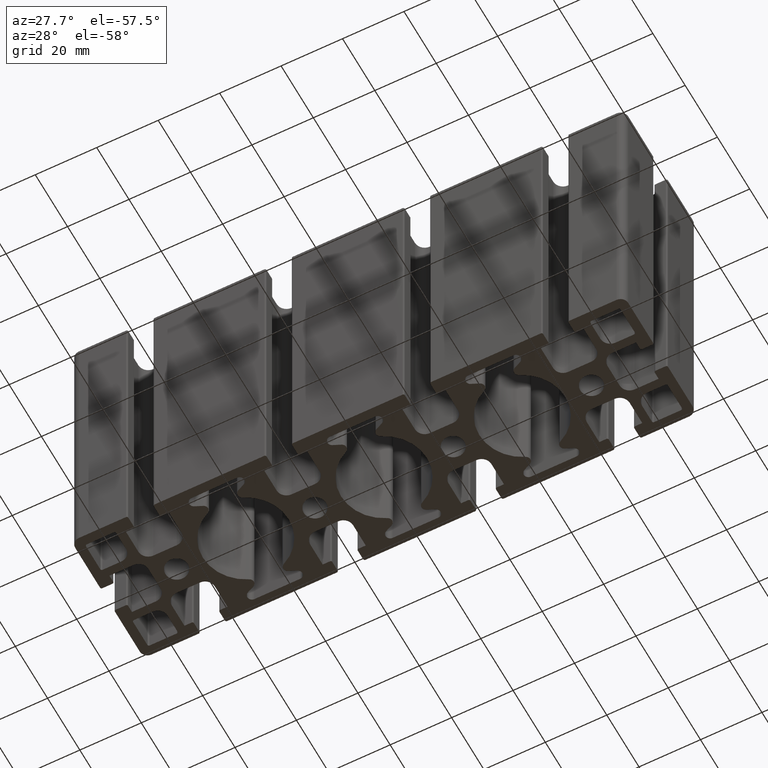
[diagram: clean part render]
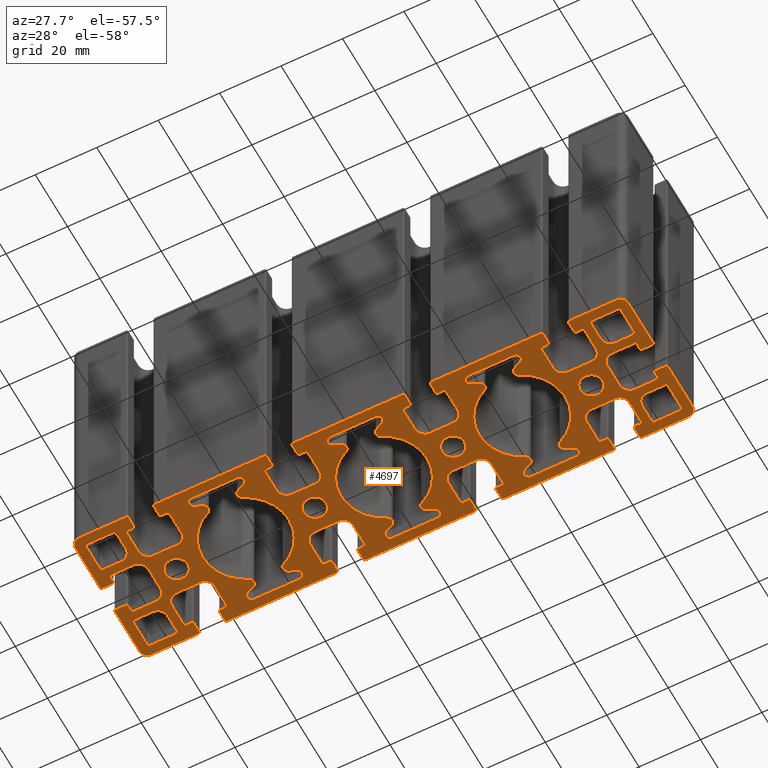
[diagram: same view with one face highlighted and labeled with its STEP entity id]
A machine part, auxiliary view. The second image highlights one B-rep face of the part: STEP entity #4697.
In plain terms, the highlighted planar face has unit normal (0, 0, 1).
Its self-contained STEP definition (entity closure, byte-faithful):
#19=FACE_BOUND('',#632,.T.);
#20=FACE_BOUND('',#633,.T.);
#21=FACE_BOUND('',#634,.T.);
#22=FACE_BOUND('',#635,.T.);
#23=FACE_BOUND('',#636,.T.);
#24=FACE_BOUND('',#637,.T.);
#25=FACE_BOUND('',#638,.T.);
#26=FACE_BOUND('',#639,.T.);
#27=FACE_BOUND('',#640,.T.);
#28=FACE_BOUND('',#641,.T.);
#29=FACE_BOUND('',#642,.T.);
#159=PLANE('',#5161);
#393=FACE_OUTER_BOUND('',#631,.T.);
#631=EDGE_LOOP('',(#3887,#3888,#3889,#3890,#3891,#3892,#3893,#3894,#3895,
#3896,#3897,#3898,#3899,#3900,#3901,#3902,#3903,#3904,#3905,#3906,#3907,
#3908,#3909,#3910,#3911,#3912,#3913,#3914,#3915,#3916,#3917,#3918,#3919,
#3920,#3921,#3922,#3923,#3924,#3925,#3926,#3927,#3928,#3929,#3930,#3931,
#3932,#3933,#3934,#3935,#3936,#3937,#3938,#3939,#3940,#3941,#3942,#3943,
#3944,#3945,#3946,#3947,#3948,#3949,#3950,#3951,#3952,#3953,#3954,#3955,
#3956,#3957,#3958,#3959,#3960,#3961,#3962,#3963,#3964,#3965,#3966,#3967,
#3968,#3969,#3970,#3971,#3972,#3973,#3974,#3975,#3976,#3977,#3978,#3979,
#3980,#3981,#3982,#3983,#3984,#3985,#3986,#3987,#3988,#3989,#3990,#3991,
#3992,#3993,#3994,#3995,#3996,#3997,#3998,#3999,#4000,#4001,#4002,#4003,
#4004,#4005,#4006,#4007,#4008,#4009,#4010,#4011,#4012,#4013,#4014,#4015,
#4016,#4017,#4018,#4019,#4020,#4021,#4022,#4023,#4024,#4025,#4026,#4027,
#4028,#4029,#4030,#4031,#4032,#4033,#4034));
#632=EDGE_LOOP('',(#4035,#4036,#4037,#4038,#4039,#4040,#4041,#4042,#4043,
#4044,#4045,#4046,#4047,#4048,#4049,#4050));
#633=EDGE_LOOP('',(#4051,#4052,#4053,#4054,#4055,#4056,#4057,#4058,#4059,
#4060,#4061,#4062,#4063,#4064,#4065,#4066));
#634=EDGE_LOOP('',(#4067,#4068,#4069,#4070,#4071,#4072,#4073,#4074,#4075,
#4076,#4077,#4078,#4079,#4080,#4081,#4082));
#635=EDGE_LOOP('',(#4083,#4084,#4085,#4086,#4087,#4088,#4089,#4090));
#636=EDGE_LOOP('',(#4091,#4092,#4093,#4094,#4095,#4096,#4097,#4098));
#637=EDGE_LOOP('',(#4099,#4100,#4101,#4102,#4103,#4104,#4105,#4106));
#638=EDGE_LOOP('',(#4107,#4108,#4109,#4110,#4111,#4112,#4113,#4114));
#639=EDGE_LOOP('',(#4115));
#640=EDGE_LOOP('',(#4116));
#641=EDGE_LOOP('',(#4117));
#642=EDGE_LOOP('',(#4118));
#657=LINE('',#6565,#1121);
#661=LINE('',#6577,#1125);
#667=LINE('',#6601,#1131);
#671=LINE('',#6613,#1135);
#675=LINE('',#6625,#1139);
#681=LINE('',#6648,#1145);
#685=LINE('',#6661,#1149);
#689=LINE('',#6673,#1153);
#695=LINE('',#6697,#1159);
#699=LINE('',#6709,#1163);
#703=LINE('',#6721,#1167);
#709=LINE('',#6744,#1173);
#711=LINE('',#6749,#1175);
#716=LINE('',#6763,#1180);
#720=LINE('',#6775,#1184);
#726=LINE('',#6799,#1190);
#730=LINE('',#6811,#1194);
#734=LINE('',#6823,#1198);
#741=LINE('',#6853,#1205);
#745=LINE('',#6865,#1209);
#749=LINE('',#6877,#1213);
#753=LINE('',#6888,#1217);
#757=LINE('',#6901,#1221);
#761=LINE('',#6913,#1225);
#765=LINE('',#6925,#1229);
#769=LINE('',#6936,#1233);
#771=LINE('',#6941,#1235);
#776=LINE('',#6955,#1240);
#780=LINE('',#6967,#1244);
#784=LINE('',#6979,#1248);
#789=LINE('',#6997,#1253);
#793=LINE('',#7009,#1257);
#797=LINE('',#7021,#1261);
#801=LINE('',#7032,#1265);
#805=LINE('',#7065,#1269);
#809=LINE('',#7077,#1273);
#812=LINE('',#7083,#1276);
#816=LINE('',#7095,#1280);
#820=LINE('',#7107,#1284);
#823=LINE('',#7113,#1287);
#827=LINE('',#7125,#1291);
#831=LINE('',#7137,#1295);
#835=LINE('',#7149,#1299);
#839=LINE('',#7161,#1303);
#842=LINE('',#7167,#1306);
#846=LINE('',#7179,#1310);
#850=LINE('',#7191,#1314);
#853=LINE('',#7197,#1317);
#857=LINE('',#7209,#1321);
#861=LINE('',#7221,#1325);
#865=LINE('',#7233,#1329);
#869=LINE('',#7245,#1333);
#872=LINE('',#7251,#1336);
#876=LINE('',#7263,#1340);
#880=LINE('',#7275,#1344);
#883=LINE('',#7281,#1347);
#887=LINE('',#7293,#1351);
#891=LINE('',#7305,#1355);
#895=LINE('',#7317,#1359);
#899=LINE('',#7329,#1363);
#903=LINE('',#7341,#1367);
#906=LINE('',#7347,#1370);
#910=LINE('',#7359,#1374);
#914=LINE('',#7371,#1378);
#917=LINE('',#7377,#1381);
#921=LINE('',#7389,#1385);
#925=LINE('',#7401,#1389);
#929=LINE('',#7413,#1393);
#933=LINE('',#7425,#1397);
#937=LINE('',#7437,#1401);
#940=LINE('',#7443,#1404);
#944=LINE('',#7455,#1408);
#948=LINE('',#7467,#1412);
#951=LINE('',#7473,#1415);
#955=LINE('',#7485,#1419);
#959=LINE('',#7497,#1423);
#963=LINE('',#7509,#1427);
#967=LINE('',#7521,#1431);
#970=LINE('',#7527,#1434);
#974=LINE('',#7539,#1438);
#978=LINE('',#7551,#1442);
#981=LINE('',#7557,#1445);
#985=LINE('',#7569,#1449);
#989=LINE('',#7581,#1453);
#993=LINE('',#7593,#1457);
#997=LINE('',#7605,#1461);
#1000=LINE('',#7611,#1464);
#1004=LINE('',#7623,#1468);
#1008=LINE('',#7635,#1472);
#1011=LINE('',#7641,#1475);
#1015=LINE('',#7653,#1479);
#1019=LINE('',#7665,#1483);
#1023=LINE('',#7677,#1487);
#1027=LINE('',#7689,#1491);
#1030=LINE('',#7695,#1494);
#1034=LINE('',#7707,#1498);
#1038=LINE('',#7719,#1502);
#1041=LINE('',#7725,#1505);
#1045=LINE('',#7737,#1509);
#1049=LINE('',#7749,#1513);
#1053=LINE('',#7761,#1517);
#1057=LINE('',#7773,#1521);
#1061=LINE('',#7785,#1525);
#1064=LINE('',#7791,#1528);
#1068=LINE('',#7803,#1532);
#1072=LINE('',#7815,#1536);
#1075=LINE('',#7821,#1539);
#1079=LINE('',#7833,#1543);
#1083=LINE('',#7845,#1547);
#1087=LINE('',#7857,#1551);
#1091=LINE('',#7869,#1555);
#1095=LINE('',#7881,#1559);
#1098=LINE('',#7887,#1562);
#1102=LINE('',#7899,#1566);
#1106=LINE('',#7911,#1570);
#1109=LINE('',#7917,#1573);
#1113=LINE('',#7929,#1577);
#1117=LINE('',#7940,#1581);
#1121=VECTOR('',#5175,14.9);
#1125=VECTOR('',#5187,2.65136562994515);
#1131=VECTOR('',#5213,2.65136562994534);
#1135=VECTOR('',#5225,14.9);
#1139=VECTOR('',#5237,2.65136562994532);
#1145=VECTOR('',#5263,2.65136562994513);
#1149=VECTOR('',#5275,14.9);
#1153=VECTOR('',#5287,2.6513656299451);
#1159=VECTOR('',#5313,2.65136562994525);
#1163=VECTOR('',#5325,14.9);
#1167=VECTOR('',#5337,2.65136562994532);
#1173=VECTOR('',#5363,2.65136562994516);
#1175=VECTOR('',#5367,2.65136562994502);
#1180=VECTOR('',#5380,14.8999999999999);
#1184=VECTOR('',#5392,2.65136562994511);
#1190=VECTOR('',#5418,2.65136562994502);
#1194=VECTOR('',#5430,14.9);
#1198=VECTOR('',#5442,2.6513656299451);
#1205=VECTOR('',#5475,8.79999999999989);
#1209=VECTOR('',#5487,6.10000000000019);
#1213=VECTOR('',#5499,6.09999999999998);
#1217=VECTOR('',#5511,8.80000000000013);
#1221=VECTOR('',#5523,8.79999999999997);
#1225=VECTOR('',#5535,8.80000000000024);
#1229=VECTOR('',#5547,6.10000000000001);
#1233=VECTOR('',#5559,6.10000000000014);
#1235=VECTOR('',#5563,8.79999999999994);
#1240=VECTOR('',#5576,8.79999999999995);
#1244=VECTOR('',#5588,6.09999999999998);
#1248=VECTOR('',#5600,6.09999999999992);
#1253=VECTOR('',#5619,6.09999999999994);
#1257=VECTOR('',#5631,8.79999999999997);
#1261=VECTOR('',#5643,8.7999999999999);
#1265=VECTOR('',#5655,6.09999999999996);
#1269=VECTOR('',#5691,3.30000000000016);
#1273=VECTOR('',#5703,2.34999999999971);
#1276=VECTOR('',#5708,7.79999999999994);
#1280=VECTOR('',#5720,7.59999999999987);
#1284=VECTOR('',#5732,7.79999999999996);
#1287=VECTOR('',#5737,2.35000000000014);
#1291=VECTOR('',#5749,3.30000000000013);
#1295=VECTOR('',#5761,35.7000000000003);
#1299=VECTOR('',#5773,3.30000000000023);
#1303=VECTOR('',#5785,2.34999999999992);
#1306=VECTOR('',#5790,7.79999999999996);
#1310=VECTOR('',#5802,7.60000000000019);
#1314=VECTOR('',#5814,7.79999999999994);
#1317=VECTOR('',#5819,2.34999999999999);
#1321=VECTOR('',#5831,3.3000000000002);
#1325=VECTOR('',#5843,35.6999999999999);
#1329=VECTOR('',#5855,3.3000000000002);
#1333=VECTOR('',#5867,2.35000000000014);
#1336=VECTOR('',#5872,7.79999999999994);
#1340=VECTOR('',#5884,7.6000000000001);
#1344=VECTOR('',#5896,7.79999999999994);
#1347=VECTOR('',#5901,2.34999999999992);
#1351=VECTOR('',#5913,3.3000000000002);
#1355=VECTOR('',#5925,15.3499999999999);
#1359=VECTOR('',#5937,15.3500000000002);
#1363=VECTOR('',#5949,3.2999999999997);
#1367=VECTOR('',#5961,2.35000000000014);
#1370=VECTOR('',#5966,7.80000000000017);
#1374=VECTOR('',#5978,7.60000000000012);
#1378=VECTOR('',#5990,7.80000000000024);
#1381=VECTOR('',#5995,2.34999999999996);
#1385=VECTOR('',#6007,3.29999999999991);
#1389=VECTOR('',#6019,15.3499999999999);
#1393=VECTOR('',#6031,15.35);
#1397=VECTOR('',#6043,3.29999999999998);
#1401=VECTOR('',#6055,2.34999999999992);
#1404=VECTOR('',#6060,7.79999999999998);
#1408=VECTOR('',#6072,7.60000000000003);
#1412=VECTOR('',#6084,7.79999999999994);
#1415=VECTOR('',#6089,2.35000000000014);
#1419=VECTOR('',#6101,3.30000000000002);
#1423=VECTOR('',#6113,35.6999999999998);
#1427=VECTOR('',#6125,3.30000000000002);
#1431=VECTOR('',#6137,2.34999999999999);
#1434=VECTOR('',#6142,7.79999999999998);
#1438=VECTOR('',#6154,7.60000000000005);
#1442=VECTOR('',#6166,7.79999999999998);
#1445=VECTOR('',#6171,2.34999999999992);
#1449=VECTOR('',#6183,3.29999999999998);
#1453=VECTOR('',#6195,35.7000000000002);
#1457=VECTOR('',#6207,3.29999999999995);
#1461=VECTOR('',#6219,2.35000000000014);
#1464=VECTOR('',#6224,7.79999999999996);
#1468=VECTOR('',#6236,7.59999999999984);
#1472=VECTOR('',#6248,7.79999999999996);
#1475=VECTOR('',#6253,2.34999999999992);
#1479=VECTOR('',#6265,3.29999999999998);
#1483=VECTOR('',#6277,35.6999999999998);
#1487=VECTOR('',#6289,3.29999999999995);
#1491=VECTOR('',#6301,2.34999999999989);
#1494=VECTOR('',#6306,7.79999999999996);
#1498=VECTOR('',#6318,7.59999999999998);
#1502=VECTOR('',#6330,7.79999999999996);
#1505=VECTOR('',#6335,2.35000000000003);
#1509=VECTOR('',#6347,3.29999999999995);
#1513=VECTOR('',#6359,15.35);
#1517=VECTOR('',#6371,15.3499999999999);
#1521=VECTOR('',#6383,3.30000000000005);
#1525=VECTOR('',#6395,2.34999999999991);
#1528=VECTOR('',#6400,7.80000000000012);
#1532=VECTOR('',#6412,7.60000000000012);
#1536=VECTOR('',#6424,7.80000000000006);
#1539=VECTOR('',#6429,2.35000000000014);
#1543=VECTOR('',#6441,3.29999999999995);
#1547=VECTOR('',#6453,15.3500000000002);
#1551=VECTOR('',#6465,15.3500000000001);
#1555=VECTOR('',#6477,3.30000000000013);
#1559=VECTOR('',#6489,2.35000000000003);
#1562=VECTOR('',#6494,7.79999999999992);
#1566=VECTOR('',#6506,7.60000000000003);
#1570=VECTOR('',#6518,7.79999999999992);
#1573=VECTOR('',#6523,2.34999999999989);
#1577=VECTOR('',#6535,3.30000000000016);
#1581=VECTOR('',#6547,35.7000000000003);
#1583=CIRCLE('',#4702,1.50000000000001);
#1585=CIRCLE('',#4706,1.5);
#1587=CIRCLE('',#4710,1.5);
#1589=CIRCLE('',#4713,14.);
#1591=CIRCLE('',#4716,1.5);
#1593=CIRCLE('',#4720,1.50000000000001);
#1595=CIRCLE('',#4724,1.5);
#1597=CIRCLE('',#4728,1.50000000000001);
#1599=CIRCLE('',#4731,14.);
#1601=CIRCLE('',#4734,1.5);
#1603=CIRCLE('',#4738,1.5);
#1605=CIRCLE('',#4742,1.5);
#1607=CIRCLE('',#4746,1.50000000000003);
#1609=CIRCLE('',#4749,14.);
#1611=CIRCLE('',#4752,1.50000000000001);
#1613=CIRCLE('',#4756,1.50000000000002);
#1615=CIRCLE('',#4760,1.5);
#1617=CIRCLE('',#4764,1.5);
#1619=CIRCLE('',#4767,14.);
#1621=CIRCLE('',#4770,1.5);
#1623=CIRCLE('',#4775,1.5);
#1625=CIRCLE('',#4779,1.49999999999999);
#1627=CIRCLE('',#4783,1.50000000000002);
#1629=CIRCLE('',#4786,14.);
#1631=CIRCLE('',#4789,1.50000000000001);
#1633=CIRCLE('',#4793,1.5);
#1635=CIRCLE('',#4797,1.5);
#1637=CIRCLE('',#4801,1.50000000000001);
#1639=CIRCLE('',#4804,14.);
#1641=CIRCLE('',#4807,1.50000000000001);
#1643=CIRCLE('',#4810,0.500000000000016);
#1645=CIRCLE('',#4814,0.500000000000025);
#1647=CIRCLE('',#4818,3.2);
#1649=CIRCLE('',#4822,0.500000000000007);
#1651=CIRCLE('',#4826,0.499999999999972);
#1653=CIRCLE('',#4830,0.500000000000025);
#1655=CIRCLE('',#4834,0.500000000000007);
#1657=CIRCLE('',#4838,3.2);
#1659=CIRCLE('',#4843,0.500000000000007);
#1661=CIRCLE('',#4847,0.500000000000007);
#1663=CIRCLE('',#4851,3.2);
#1665=CIRCLE('',#4855,0.500000000000025);
#1667=CIRCLE('',#4858,3.2);
#1669=CIRCLE('',#4862,0.499999999999989);
#1671=CIRCLE('',#4866,0.500000000000007);
#1673=CIRCLE('',#4870,0.499999999999972);
#1676=CIRCLE('',#4875,3.65);
#1678=CIRCLE('',#4878,3.65);
#1680=CIRCLE('',#4881,3.65);
#1682=CIRCLE('',#4884,3.65);
#1683=CIRCLE('',#4886,0.499999999999989);
#1685=CIRCLE('',#4890,0.500000000000043);
#1687=CIRCLE('',#4895,3.20000000000004);
#1689=CIRCLE('',#4899,3.20000000000004);
#1691=CIRCLE('',#4904,0.500000000000043);
#1693=CIRCLE('',#4908,0.500000000000016);
#1695=CIRCLE('',#4912,0.499999999999972);
#1697=CIRCLE('',#4916,0.500000000000025);
#1699=CIRCLE('',#4921,3.20000000000002);
#1701=CIRCLE('',#4925,3.2);
#1703=CIRCLE('',#4930,0.500000000000007);
#1705=CIRCLE('',#4934,0.499999999999972);
#1707=CIRCLE('',#4938,0.499999999999972);
#1709=CIRCLE('',#4942,0.500000000000025);
#1711=CIRCLE('',#4947,3.20000000000002);
#1713=CIRCLE('',#4951,3.2);
#1715=CIRCLE('',#4956,0.500000000000007);
#1717=CIRCLE('',#4960,0.499999999999989);
#1719=CIRCLE('',#4964,2.49999999999996);
#1721=CIRCLE('',#4968,0.499999999999972);
#1723=CIRCLE('',#4972,0.500000000000007);
#1725=CIRCLE('',#4977,3.2);
#1727=CIRCLE('',#4981,3.20000000000002);
#1729=CIRCLE('',#4986,0.499999999999989);
#1731=CIRCLE('',#4990,0.499999999999972);
#1733=CIRCLE('',#4994,2.49999999999996);
#1735=CIRCLE('',#4998,0.500000000000007);
#1737=CIRCLE('',#5002,0.499999999999989);
#1739=CIRCLE('',#5007,3.2);
#1741=CIRCLE('',#5011,3.2);
#1743=CIRCLE('',#5016,0.500000000000007);
#1745=CIRCLE('',#5020,0.499999999999989);
#1747=CIRCLE('',#5024,0.499999999999972);
#1749=CIRCLE('',#5028,0.499999999999972);
#1751=CIRCLE('',#5033,3.2);
#1753=CIRCLE('',#5037,3.20000000000004);
#1755=CIRCLE('',#5042,0.500000000000007);
#1757=CIRCLE('',#5046,0.499999999999989);
#1759=CIRCLE('',#5050,0.500000000000025);
#1761=CIRCLE('',#5054,0.500000000000025);
#1763=CIRCLE('',#5059,3.20000000000004);
#1765=CIRCLE('',#5063,3.20000000000004);
#1767=CIRCLE('',#5068,0.500000000000007);
#1769=CIRCLE('',#5072,0.500000000000007);
#1771=CIRCLE('',#5076,0.500000000000007);
#1773=CIRCLE('',#5080,0.500000000000025);
#1775=CIRCLE('',#5085,3.20000000000002);
#1777=CIRCLE('',#5089,3.20000000000002);
#1779=CIRCLE('',#5094,0.500000000000025);
#1781=CIRCLE('',#5098,0.500000000000007);
#1783=CIRCLE('',#5102,2.50000000000001);
#1785=CIRCLE('',#5106,0.499999999999989);
#1787=CIRCLE('',#5110,0.500000000000007);
#1789=CIRCLE('',#5115,3.20000000000004);
#1791=CIRCLE('',#5119,3.20000000000002);
#1793=CIRCLE('',#5124,0.499999999999989);
#1795=CIRCLE('',#5128,0.499999999999998);
#1797=CIRCLE('',#5132,2.5);
#1799=CIRCLE('',#5136,0.499999999999989);
#1801=CIRCLE('',#5140,0.500000000000043);
#1803=CIRCLE('',#5145,3.20000000000004);
#1805=CIRCLE('',#5149,3.20000000000002);
#1807=CIRCLE('',#5154,0.500000000000043);
#1809=CIRCLE('',#5158,0.500000000000016);
#1811=VERTEX_POINT('',#6555);
#1812=VERTEX_POINT('',#6556);
#1815=VERTEX_POINT('',#6564);
#1817=VERTEX_POINT('',#6570);
#1819=VERTEX_POINT('',#6576);
#1821=VERTEX_POINT('',#6582);
#1823=VERTEX_POINT('',#6588);
#1825=VERTEX_POINT('',#6594);
#1827=VERTEX_POINT('',#6600);
#1829=VERTEX_POINT('',#6606);
#1831=VERTEX_POINT('',#6612);
#1833=VERTEX_POINT('',#6618);
#1835=VERTEX_POINT('',#6624);
#1837=VERTEX_POINT('',#6630);
#1839=VERTEX_POINT('',#6636);
#1841=VERTEX_POINT('',#6642);
#1843=VERTEX_POINT('',#6651);
#1844=VERTEX_POINT('',#6652);
#1847=VERTEX_POINT('',#6660);
#1849=VERTEX_POINT('',#6666);
#1851=VERTEX_POINT('',#6672);
#1853=VERTEX_POINT('',#6678);
#1855=VERTEX_POINT('',#6684);
#1857=VERTEX_POINT('',#6690);
#1859=VERTEX_POINT('',#6696);
#1861=VERTEX_POINT('',#6702);
#1863=VERTEX_POINT('',#6708);
#1865=VERTEX_POINT('',#6714);
#1867=VERTEX_POINT('',#6720);
#1869=VERTEX_POINT('',#6726);
#1871=VERTEX_POINT('',#6732);
#1873=VERTEX_POINT('',#6738);
#1875=VERTEX_POINT('',#6747);
#1876=VERTEX_POINT('',#6748);
#1879=VERTEX_POINT('',#6756);
#1881=VERTEX_POINT('',#6762);
#1883=VERTEX_POINT('',#6768);
#1885=VERTEX_POINT('',#6774);
#1887=VERTEX_POINT('',#6780);
#1889=VERTEX_POINT('',#6786);
#1891=VERTEX_POINT('',#6792);
#1893=VERTEX_POINT('',#6798);
#1895=VERTEX_POINT('',#6804);
#1897=VERTEX_POINT('',#6810);
#1899=VERTEX_POINT('',#6816);
#1901=VERTEX_POINT('',#6822);
#1903=VERTEX_POINT('',#6828);
#1905=VERTEX_POINT('',#6834);
#1907=VERTEX_POINT('',#6843);
#1908=VERTEX_POINT('',#6844);
#1911=VERTEX_POINT('',#6852);
#1913=VERTEX_POINT('',#6858);
#1915=VERTEX_POINT('',#6864);
#1917=VERTEX_POINT('',#6870);
#1919=VERTEX_POINT('',#6876);
#1921=VERTEX_POINT('',#6882);
#1923=VERTEX_POINT('',#6891);
#1924=VERTEX_POINT('',#6892);
#1927=VERTEX_POINT('',#6900);
#1929=VERTEX_POINT('',#6906);
#1931=VERTEX_POINT('',#6912);
#1933=VERTEX_POINT('',#6918);
#1935=VERTEX_POINT('',#6924);
#1937=VERTEX_POINT('',#6930);
#1939=VERTEX_POINT('',#6939);
#1940=VERTEX_POINT('',#6940);
#1943=VERTEX_POINT('',#6948);
#1945=VERTEX_POINT('',#6954);
#1947=VERTEX_POINT('',#6960);
#1949=VERTEX_POINT('',#6966);
#1951=VERTEX_POINT('',#6972);
#1953=VERTEX_POINT('',#6978);
#1955=VERTEX_POINT('',#6987);
#1956=VERTEX_POINT('',#6988);
#1959=VERTEX_POINT('',#6996);
#1961=VERTEX_POINT('',#7002);
#1963=VERTEX_POINT('',#7008);
#1965=VERTEX_POINT('',#7014);
#1967=VERTEX_POINT('',#7020);
#1969=VERTEX_POINT('',#7026);
#1972=VERTEX_POINT('',#7037);
#1974=VERTEX_POINT('',#7042);
#1976=VERTEX_POINT('',#7047);
#1978=VERTEX_POINT('',#7052);
#1979=VERTEX_POINT('',#7055);
#1980=VERTEX_POINT('',#7056);
#1983=VERTEX_POINT('',#7064);
#1985=VERTEX_POINT('',#7070);
#1987=VERTEX_POINT('',#7076);
#1989=VERTEX_POINT('',#7082);
#1991=VERTEX_POINT('',#7088);
#1993=VERTEX_POINT('',#7094);
#1995=VERTEX_POINT('',#7100);
#1997=VERTEX_POINT('',#7106);
#1999=VERTEX_POINT('',#7112);
#2001=VERTEX_POINT('',#7118);
#2003=VERTEX_POINT('',#7124);
#2005=VERTEX_POINT('',#7130);
#2007=VERTEX_POINT('',#7136);
#2009=VERTEX_POINT('',#7142);
#2011=VERTEX_POINT('',#7148);
#2013=VERTEX_POINT('',#7154);
#2015=VERTEX_POINT('',#7160);
#2017=VERTEX_POINT('',#7166);
#2019=VERTEX_POINT('',#7172);
#2021=VERTEX_POINT('',#7178);
#2023=VERTEX_POINT('',#7184);
#2025=VERTEX_POINT('',#7190);
#2027=VERTEX_POINT('',#7196);
#2029=VERTEX_POINT('',#7202);
#2031=VERTEX_POINT('',#7208);
#2033=VERTEX_POINT('',#7214);
#2035=VERTEX_POINT('',#7220);
#2037=VERTEX_POINT('',#7226);
#2039=VERTEX_POINT('',#7232);
#2041=VERTEX_POINT('',#7238);
#2043=VERTEX_POINT('',#7244);
#2045=VERTEX_POINT('',#7250);
#2047=VERTEX_POINT('',#7256);
#2049=VERTEX_POINT('',#7262);
#2051=VERTEX_POINT('',#7268);
#2053=VERTEX_POINT('',#7274);
#2055=VERTEX_POINT('',#7280);
#2057=VERTEX_POINT('',#7286);
#2059=VERTEX_POINT('',#7292);
#2061=VERTEX_POINT('',#7298);
#2063=VERTEX_POINT('',#7304);
#2065=VERTEX_POINT('',#7310);
#2067=VERTEX_POINT('',#7316);
#2069=VERTEX_POINT('',#7322);
#2071=VERTEX_POINT('',#7328);
#2073=VERTEX_POINT('',#7334);
#2075=VERTEX_POINT('',#7340);
#2077=VERTEX_POINT('',#7346);
#2079=VERTEX_POINT('',#7352);
#2081=VERTEX_POINT('',#7358);
#2083=VERTEX_POINT('',#7364);
#2085=VERTEX_POINT('',#7370);
#2087=VERTEX_POINT('',#7376);
#2089=VERTEX_POINT('',#7382);
#2091=VERTEX_POINT('',#7388);
#2093=VERTEX_POINT('',#7394);
#2095=VERTEX_POINT('',#7400);
#2097=VERTEX_POINT('',#7406);
#2099=VERTEX_POINT('',#7412);
#2101=VERTEX_POINT('',#7418);
#2103=VERTEX_POINT('',#7424);
#2105=VERTEX_POINT('',#7430);
#2107=VERTEX_POINT('',#7436);
#2109=VERTEX_POINT('',#7442);
#2111=VERTEX_POINT('',#7448);
#2113=VERTEX_POINT('',#7454);
#2115=VERTEX_POINT('',#7460);
#2117=VERTEX_POINT('',#7466);
#2119=VERTEX_POINT('',#7472);
#2121=VERTEX_POINT('',#7478);
#2123=VERTEX_POINT('',#7484);
#2125=VERTEX_POINT('',#7490);
#2127=VERTEX_POINT('',#7496);
#2129=VERTEX_POINT('',#7502);
#2131=VERTEX_POINT('',#7508);
#2133=VERTEX_POINT('',#7514);
#2135=VERTEX_POINT('',#7520);
#2137=VERTEX_POINT('',#7526);
#2139=VERTEX_POINT('',#7532);
#2141=VERTEX_POINT('',#7538);
#2143=VERTEX_POINT('',#7544);
#2145=VERTEX_POINT('',#7550);
#2147=VERTEX_POINT('',#7556);
#2149=VERTEX_POINT('',#7562);
#2151=VERTEX_POINT('',#7568);
#2153=VERTEX_POINT('',#7574);
#2155=VERTEX_POINT('',#7580);
#2157=VERTEX_POINT('',#7586);
#2159=VERTEX_POINT('',#7592);
#2161=VERTEX_POINT('',#7598);
#2163=VERTEX_POINT('',#7604);
#2165=VERTEX_POINT('',#7610);
#2167=VERTEX_POINT('',#7616);
#2169=VERTEX_POINT('',#7622);
#2171=VERTEX_POINT('',#7628);
#2173=VERTEX_POINT('',#7634);
#2175=VERTEX_POINT('',#7640);
#2177=VERTEX_POINT('',#7646);
#2179=VERTEX_POINT('',#7652);
#2181=VERTEX_POINT('',#7658);
#2183=VERTEX_POINT('',#7664);
#2185=VERTEX_POINT('',#7670);
#2187=VERTEX_POINT('',#7676);
#2189=VERTEX_POINT('',#7682);
#2191=VERTEX_POINT('',#7688);
#2193=VERTEX_POINT('',#7694);
#2195=VERTEX_POINT('',#7700);
#2197=VERTEX_POINT('',#7706);
#2199=VERTEX_POINT('',#7712);
#2201=VERTEX_POINT('',#7718);
#2203=VERTEX_POINT('',#7724);
#2205=VERTEX_POINT('',#7730);
#2207=VERTEX_POINT('',#7736);
#2209=VERTEX_POINT('',#7742);
#2211=VERTEX_POINT('',#7748);
#2213=VERTEX_POINT('',#7754);
#2215=VERTEX_POINT('',#7760);
#2217=VERTEX_POINT('',#7766);
#2219=VERTEX_POINT('',#7772);
#2221=VERTEX_POINT('',#7778);
#2223=VERTEX_POINT('',#7784);
#2225=VERTEX_POINT('',#7790);
#2227=VERTEX_POINT('',#7796);
#2229=VERTEX_POINT('',#7802);
#2231=VERTEX_POINT('',#7808);
#2233=VERTEX_POINT('',#7814);
#2235=VERTEX_POINT('',#7820);
#2237=VERTEX_POINT('',#7826);
#2239=VERTEX_POINT('',#7832);
#2241=VERTEX_POINT('',#7838);
#2243=VERTEX_POINT('',#7844);
#2245=VERTEX_POINT('',#7850);
#2247=VERTEX_POINT('',#7856);
#2249=VERTEX_POINT('',#7862);
#2251=VERTEX_POINT('',#7868);
#2253=VERTEX_POINT('',#7874);
#2255=VERTEX_POINT('',#7880);
#2257=VERTEX_POINT('',#7886);
#2259=VERTEX_POINT('',#7892);
#2261=VERTEX_POINT('',#7898);
#2263=VERTEX_POINT('',#7904);
#2265=VERTEX_POINT('',#7910);
#2267=VERTEX_POINT('',#7916);
#2269=VERTEX_POINT('',#7922);
#2271=VERTEX_POINT('',#7928);
#2273=VERTEX_POINT('',#7934);
#2275=EDGE_CURVE('',#1811,#1812,#1583,.T.);
#2279=EDGE_CURVE('',#1815,#1811,#657,.T.);
#2282=EDGE_CURVE('',#1817,#1815,#1585,.T.);
#2285=EDGE_CURVE('',#1819,#1817,#661,.T.);
#2288=EDGE_CURVE('',#1821,#1819,#1587,.T.);
#2291=EDGE_CURVE('',#1823,#1821,#1589,.T.);
#2294=EDGE_CURVE('',#1825,#1823,#1591,.T.);
#2297=EDGE_CURVE('',#1827,#1825,#667,.T.);
#2300=EDGE_CURVE('',#1829,#1827,#1593,.T.);
#2303=EDGE_CURVE('',#1831,#1829,#671,.T.);
#2306=EDGE_CURVE('',#1833,#1831,#1595,.T.);
#2309=EDGE_CURVE('',#1835,#1833,#675,.T.);
#2312=EDGE_CURVE('',#1837,#1835,#1597,.T.);
#2315=EDGE_CURVE('',#1839,#1837,#1599,.T.);
#2318=EDGE_CURVE('',#1841,#1839,#1601,.T.);
#2321=EDGE_CURVE('',#1812,#1841,#681,.T.);
#2323=EDGE_CURVE('',#1843,#1844,#1603,.T.);
#2327=EDGE_CURVE('',#1847,#1843,#685,.T.);
#2330=EDGE_CURVE('',#1849,#1847,#1605,.T.);
#2333=EDGE_CURVE('',#1851,#1849,#689,.T.);
#2336=EDGE_CURVE('',#1853,#1851,#1607,.T.);
#2339=EDGE_CURVE('',#1855,#1853,#1609,.T.);
#2342=EDGE_CURVE('',#1857,#1855,#1611,.T.);
#2345=EDGE_CURVE('',#1859,#1857,#695,.T.);
#2348=EDGE_CURVE('',#1861,#1859,#1613,.T.);
#2351=EDGE_CURVE('',#1863,#1861,#699,.T.);
#2354=EDGE_CURVE('',#1865,#1863,#1615,.T.);
#2357=EDGE_CURVE('',#1867,#1865,#703,.T.);
#2360=EDGE_CURVE('',#1869,#1867,#1617,.T.);
#2363=EDGE_CURVE('',#1871,#1869,#1619,.T.);
#2366=EDGE_CURVE('',#1873,#1871,#1621,.T.);
#2369=EDGE_CURVE('',#1844,#1873,#709,.T.);
#2371=EDGE_CURVE('',#1875,#1876,#711,.T.);
#2375=EDGE_CURVE('',#1879,#1875,#1623,.T.);
#2378=EDGE_CURVE('',#1881,#1879,#716,.T.);
#2381=EDGE_CURVE('',#1883,#1881,#1625,.T.);
#2384=EDGE_CURVE('',#1885,#1883,#720,.T.);
#2387=EDGE_CURVE('',#1887,#1885,#1627,.T.);
#2390=EDGE_CURVE('',#1889,#1887,#1629,.T.);
#2393=EDGE_CURVE('',#1891,#1889,#1631,.T.);
#2396=EDGE_CURVE('',#1893,#1891,#726,.T.);
#2399=EDGE_CURVE('',#1895,#1893,#1633,.T.);
#2402=EDGE_CURVE('',#1897,#1895,#730,.T.);
#2405=EDGE_CURVE('',#1899,#1897,#1635,.T.);
#2408=EDGE_CURVE('',#1901,#1899,#734,.T.);
#2411=EDGE_CURVE('',#1903,#1901,#1637,.T.);
#2414=EDGE_CURVE('',#1905,#1903,#1639,.T.);
#2417=EDGE_CURVE('',#1876,#1905,#1641,.T.);
#2419=EDGE_CURVE('',#1907,#1908,#1643,.T.);
#2423=EDGE_CURVE('',#1911,#1907,#741,.T.);
#2426=EDGE_CURVE('',#1913,#1911,#1645,.T.);
#2429=EDGE_CURVE('',#1915,#1913,#745,.T.);
#2432=EDGE_CURVE('',#1917,#1915,#1647,.T.);
#2435=EDGE_CURVE('',#1919,#1917,#749,.T.);
#2438=EDGE_CURVE('',#1921,#1919,#1649,.T.);
#2441=EDGE_CURVE('',#1908,#1921,#753,.T.);
#2443=EDGE_CURVE('',#1923,#1924,#1651,.T.);
#2447=EDGE_CURVE('',#1927,#1923,#757,.T.);
#2450=EDGE_CURVE('',#1929,#1927,#1653,.T.);
#2453=EDGE_CURVE('',#1931,#1929,#761,.T.);
#2456=EDGE_CURVE('',#1933,#1931,#1655,.T.);
#2459=EDGE_CURVE('',#1935,#1933,#765,.T.);
#2462=EDGE_CURVE('',#1937,#1935,#1657,.T.);
#2465=EDGE_CURVE('',#1924,#1937,#769,.T.);
#2467=EDGE_CURVE('',#1939,#1940,#771,.T.);
#2471=EDGE_CURVE('',#1943,#1939,#1659,.T.);
#2474=EDGE_CURVE('',#1945,#1943,#776,.T.);
#2477=EDGE_CURVE('',#1947,#1945,#1661,.T.);
#2480=EDGE_CURVE('',#1949,#1947,#780,.T.);
#2483=EDGE_CURVE('',#1951,#1949,#1663,.T.);
#2486=EDGE_CURVE('',#1953,#1951,#784,.T.);
#2489=EDGE_CURVE('',#1940,#1953,#1665,.T.);
#2491=EDGE_CURVE('',#1955,#1956,#1667,.T.);
#2495=EDGE_CURVE('',#1959,#1955,#789,.T.);
#2498=EDGE_CURVE('',#1961,#1959,#1669,.T.);
#2501=EDGE_CURVE('',#1963,#1961,#793,.T.);
#2504=EDGE_CURVE('',#1965,#1963,#1671,.T.);
#2507=EDGE_CURVE('',#1967,#1965,#797,.T.);
#2510=EDGE_CURVE('',#1969,#1967,#1673,.T.);
#2513=EDGE_CURVE('',#1956,#1969,#801,.T.);
#2516=EDGE_CURVE('',#1972,#1972,#1676,.T.);
#2518=EDGE_CURVE('',#1974,#1974,#1678,.T.);
#2520=EDGE_CURVE('',#1976,#1976,#1680,.T.);
#2522=EDGE_CURVE('',#1978,#1978,#1682,.T.);
#2523=EDGE_CURVE('',#1979,#1980,#1683,.T.);
#2527=EDGE_CURVE('',#1980,#1983,#805,.T.);
#2530=EDGE_CURVE('',#1983,#1985,#1685,.T.);
#2533=EDGE_CURVE('',#1985,#1987,#809,.T.);
#2536=EDGE_CURVE('',#1987,#1989,#812,.T.);
#2539=EDGE_CURVE('',#1989,#1991,#1687,.T.);
#2542=EDGE_CURVE('',#1991,#1993,#816,.T.);
#2545=EDGE_CURVE('',#1993,#1995,#1689,.T.);
#2548=EDGE_CURVE('',#1995,#1997,#820,.T.);
#2551=EDGE_CURVE('',#1997,#1999,#823,.T.);
#2554=EDGE_CURVE('',#1999,#2001,#1691,.T.);
#2557=EDGE_CURVE('',#2001,#2003,#827,.T.);
#2560=EDGE_CURVE('',#2003,#2005,#1693,.T.);
#2563=EDGE_CURVE('',#2005,#2007,#831,.T.);
#2566=EDGE_CURVE('',#2007,#2009,#1695,.T.);
#2569=EDGE_CURVE('',#2009,#2011,#835,.T.);
#2572=EDGE_CURVE('',#2011,#2013,#1697,.T.);
#2575=EDGE_CURVE('',#2013,#2015,#839,.T.);
#2578=EDGE_CURVE('',#2015,#2017,#842,.T.);
#2581=EDGE_CURVE('',#2017,#2019,#1699,.T.);
#2584=EDGE_CURVE('',#2019,#2021,#846,.T.);
#2587=EDGE_CURVE('',#2021,#2023,#1701,.T.);
#2590=EDGE_CURVE('',#2023,#2025,#850,.T.);
#2593=EDGE_CURVE('',#2025,#2027,#853,.T.);
#2596=EDGE_CURVE('',#2027,#2029,#1703,.T.);
#2599=EDGE_CURVE('',#2029,#2031,#857,.T.);
#2602=EDGE_CURVE('',#2031,#2033,#1705,.T.);
#2605=EDGE_CURVE('',#2033,#2035,#861,.T.);
#2608=EDGE_CURVE('',#2035,#2037,#1707,.T.);
#2611=EDGE_CURVE('',#2037,#2039,#865,.T.);
#2614=EDGE_CURVE('',#2039,#2041,#1709,.T.);
#2617=EDGE_CURVE('',#2041,#2043,#869,.T.);
#2620=EDGE_CURVE('',#2043,#2045,#872,.T.);
#2623=EDGE_CURVE('',#2045,#2047,#1711,.T.);
#2626=EDGE_CURVE('',#2047,#2049,#876,.T.);
#2629=EDGE_CURVE('',#2049,#2051,#1713,.T.);
#2632=EDGE_CURVE('',#2051,#2053,#880,.T.);
#2635=EDGE_CURVE('',#2053,#2055,#883,.T.);
#2638=EDGE_CURVE('',#2055,#2057,#1715,.T.);
#2641=EDGE_CURVE('',#2057,#2059,#887,.T.);
#2644=EDGE_CURVE('',#2059,#2061,#1717,.T.);
#2647=EDGE_CURVE('',#2061,#2063,#891,.T.);
#2650=EDGE_CURVE('',#2063,#2065,#1719,.T.);
#2653=EDGE_CURVE('',#2065,#2067,#895,.T.);
#2656=EDGE_CURVE('',#2067,#2069,#1721,.T.);
#2659=EDGE_CURVE('',#2069,#2071,#899,.T.);
#2662=EDGE_CURVE('',#2071,#2073,#1723,.T.);
#2665=EDGE_CURVE('',#2073,#2075,#903,.T.);
#2668=EDGE_CURVE('',#2075,#2077,#906,.T.);
#2671=EDGE_CURVE('',#2077,#2079,#1725,.T.);
#2674=EDGE_CURVE('',#2079,#2081,#910,.T.);
#2677=EDGE_CURVE('',#2081,#2083,#1727,.T.);
#2680=EDGE_CURVE('',#2083,#2085,#914,.T.);
#2683=EDGE_CURVE('',#2085,#2087,#917,.T.);
#2686=EDGE_CURVE('',#2087,#2089,#1729,.T.);
#2689=EDGE_CURVE('',#2089,#2091,#921,.T.);
#2692=EDGE_CURVE('',#2091,#2093,#1731,.T.);
#2695=EDGE_CURVE('',#2093,#2095,#925,.T.);
#2698=EDGE_CURVE('',#2095,#2097,#1733,.T.);
#2701=EDGE_CURVE('',#2097,#2099,#929,.T.);
#2704=EDGE_CURVE('',#2099,#2101,#1735,.T.);
#2707=EDGE_CURVE('',#2101,#2103,#933,.T.);
#2710=EDGE_CURVE('',#2103,#2105,#1737,.T.);
#2713=EDGE_CURVE('',#2105,#2107,#937,.T.);
#2716=EDGE_CURVE('',#2107,#2109,#940,.T.);
#2719=EDGE_CURVE('',#2109,#2111,#1739,.T.);
#2722=EDGE_CURVE('',#2111,#2113,#944,.T.);
#2725=EDGE_CURVE('',#2113,#2115,#1741,.T.);
#2728=EDGE_CURVE('',#2115,#2117,#948,.T.);
#2731=EDGE_CURVE('',#2117,#2119,#951,.T.);
#2734=EDGE_CURVE('',#2119,#2121,#1743,.T.);
#2737=EDGE_CURVE('',#2121,#2123,#955,.T.);
#2740=EDGE_CURVE('',#2123,#2125,#1745,.T.);
#2743=EDGE_CURVE('',#2125,#2127,#959,.T.);
#2746=EDGE_CURVE('',#2127,#2129,#1747,.T.);
#2749=EDGE_CURVE('',#2129,#2131,#963,.T.);
#2752=EDGE_CURVE('',#2131,#2133,#1749,.T.);
#2755=EDGE_CURVE('',#2133,#2135,#967,.T.);
#2758=EDGE_CURVE('',#2135,#2137,#970,.T.);
#2761=EDGE_CURVE('',#2137,#2139,#1751,.T.);
#2764=EDGE_CURVE('',#2139,#2141,#974,.T.);
#2767=EDGE_CURVE('',#2141,#2143,#1753,.T.);
#2770=EDGE_CURVE('',#2143,#2145,#978,.T.);
#2773=EDGE_CURVE('',#2145,#2147,#981,.T.);
#2776=EDGE_CURVE('',#2147,#2149,#1755,.T.);
#2779=EDGE_CURVE('',#2149,#2151,#985,.T.);
#2782=EDGE_CURVE('',#2151,#2153,#1757,.T.);
#2785=EDGE_CURVE('',#2153,#2155,#989,.T.);
#2788=EDGE_CURVE('',#2155,#2157,#1759,.T.);
#2791=EDGE_CURVE('',#2157,#2159,#993,.T.);
#2794=EDGE_CURVE('',#2159,#2161,#1761,.T.);
#2797=EDGE_CURVE('',#2161,#2163,#997,.T.);
#2800=EDGE_CURVE('',#2163,#2165,#1000,.T.);
#2803=EDGE_CURVE('',#2165,#2167,#1763,.T.);
#2806=EDGE_CURVE('',#2167,#2169,#1004,.T.);
#2809=EDGE_CURVE('',#2169,#2171,#1765,.T.);
#2812=EDGE_CURVE('',#2171,#2173,#1008,.T.);
#2815=EDGE_CURVE('',#2173,#2175,#1011,.T.);
#2818=EDGE_CURVE('',#2175,#2177,#1767,.T.);
#2821=EDGE_CURVE('',#2177,#2179,#1015,.T.);
#2824=EDGE_CURVE('',#2179,#2181,#1769,.T.);
#2827=EDGE_CURVE('',#2181,#2183,#1019,.T.);
#2830=EDGE_CURVE('',#2183,#2185,#1771,.T.);
#2833=EDGE_CURVE('',#2185,#2187,#1023,.T.);
#2836=EDGE_CURVE('',#2187,#2189,#1773,.T.);
#2839=EDGE_CURVE('',#2189,#2191,#1027,.T.);
#2842=EDGE_CURVE('',#2191,#2193,#1030,.T.);
#2845=EDGE_CURVE('',#2193,#2195,#1775,.T.);
#2848=EDGE_CURVE('',#2195,#2197,#1034,.T.);
#2851=EDGE_CURVE('',#2197,#2199,#1777,.T.);
#2854=EDGE_CURVE('',#2199,#2201,#1038,.T.);
#2857=EDGE_CURVE('',#2201,#2203,#1041,.T.);
#2860=EDGE_CURVE('',#2203,#2205,#1779,.T.);
#2863=EDGE_CURVE('',#2205,#2207,#1045,.T.);
#2866=EDGE_CURVE('',#2207,#2209,#1781,.T.);
#2869=EDGE_CURVE('',#2209,#2211,#1049,.T.);
#2872=EDGE_CURVE('',#2211,#2213,#1783,.T.);
#2875=EDGE_CURVE('',#2213,#2215,#1053,.T.);
#2878=EDGE_CURVE('',#2215,#2217,#1785,.T.);
#2881=EDGE_CURVE('',#2217,#2219,#1057,.T.);
#2884=EDGE_CURVE('',#2219,#2221,#1787,.T.);
#2887=EDGE_CURVE('',#2221,#2223,#1061,.T.);
#2890=EDGE_CURVE('',#2223,#2225,#1064,.T.);
#2893=EDGE_CURVE('',#2225,#2227,#1789,.T.);
#2896=EDGE_CURVE('',#2227,#2229,#1068,.T.);
#2899=EDGE_CURVE('',#2229,#2231,#1791,.T.);
#2902=EDGE_CURVE('',#2231,#2233,#1072,.T.);
#2905=EDGE_CURVE('',#2233,#2235,#1075,.T.);
#2908=EDGE_CURVE('',#2235,#2237,#1793,.T.);
#2911=EDGE_CURVE('',#2237,#2239,#1079,.T.);
#2914=EDGE_CURVE('',#2239,#2241,#1795,.T.);
#2917=EDGE_CURVE('',#2241,#2243,#1083,.T.);
#2920=EDGE_CURVE('',#2243,#2245,#1797,.T.);
#2923=EDGE_CURVE('',#2245,#2247,#1087,.T.);
#2926=EDGE_CURVE('',#2247,#2249,#1799,.T.);
#2929=EDGE_CURVE('',#2249,#2251,#1091,.T.);
#2932=EDGE_CURVE('',#2251,#2253,#1801,.T.);
#2935=EDGE_CURVE('',#2253,#2255,#1095,.T.);
#2938=EDGE_CURVE('',#2255,#2257,#1098,.T.);
#2941=EDGE_CURVE('',#2257,#2259,#1803,.T.);
#2944=EDGE_CURVE('',#2259,#2261,#1102,.T.);
#2947=EDGE_CURVE('',#2261,#2263,#1805,.T.);
#2950=EDGE_CURVE('',#2263,#2265,#1106,.T.);
#2953=EDGE_CURVE('',#2265,#2267,#1109,.T.);
#2956=EDGE_CURVE('',#2267,#2269,#1807,.T.);
#2959=EDGE_CURVE('',#2269,#2271,#1113,.T.);
#2962=EDGE_CURVE('',#2271,#2273,#1809,.T.);
#2965=EDGE_CURVE('',#2273,#1979,#1117,.T.);
#3887=ORIENTED_EDGE('',*,*,#2965,.T.);
#3888=ORIENTED_EDGE('',*,*,#2523,.T.);
#3889=ORIENTED_EDGE('',*,*,#2527,.T.);
#3890=ORIENTED_EDGE('',*,*,#2530,.T.);
#3891=ORIENTED_EDGE('',*,*,#2533,.T.);
#3892=ORIENTED_EDGE('',*,*,#2536,.T.);
#3893=ORIENTED_EDGE('',*,*,#2539,.T.);
#3894=ORIENTED_EDGE('',*,*,#2542,.T.);
#3895=ORIENTED_EDGE('',*,*,#2545,.T.);
#3896=ORIENTED_EDGE('',*,*,#2548,.T.);
#3897=ORIENTED_EDGE('',*,*,#2551,.T.);
#3898=ORIENTED_EDGE('',*,*,#2554,.T.);
#3899=ORIENTED_EDGE('',*,*,#2557,.T.);
#3900=ORIENTED_EDGE('',*,*,#2560,.T.);
#3901=ORIENTED_EDGE('',*,*,#2563,.T.);
#3902=ORIENTED_EDGE('',*,*,#2566,.T.);
#3903=ORIENTED_EDGE('',*,*,#2569,.T.);
#3904=ORIENTED_EDGE('',*,*,#2572,.T.);
#3905=ORIENTED_EDGE('',*,*,#2575,.T.);
#3906=ORIENTED_EDGE('',*,*,#2578,.T.);
#3907=ORIENTED_EDGE('',*,*,#2581,.T.);
#3908=ORIENTED_EDGE('',*,*,#2584,.T.);
#3909=ORIENTED_EDGE('',*,*,#2587,.T.);
#3910=ORIENTED_EDGE('',*,*,#2590,.T.);
#3911=ORIENTED_EDGE('',*,*,#2593,.T.);
#3912=ORIENTED_EDGE('',*,*,#2596,.T.);
#3913=ORIENTED_EDGE('',*,*,#2599,.T.);
#3914=ORIENTED_EDGE('',*,*,#2602,.T.);
#3915=ORIENTED_EDGE('',*,*,#2605,.T.);
#3916=ORIENTED_EDGE('',*,*,#2608,.T.);
#3917=ORIENTED_EDGE('',*,*,#2611,.T.);
#3918=ORIENTED_EDGE('',*,*,#2614,.T.);
#3919=ORIENTED_EDGE('',*,*,#2617,.T.);
#3920=ORIENTED_EDGE('',*,*,#2620,.T.);
#3921=ORIENTED_EDGE('',*,*,#2623,.T.);
#3922=ORIENTED_EDGE('',*,*,#2626,.T.);
#3923=ORIENTED_EDGE('',*,*,#2629,.T.);
#3924=ORIENTED_EDGE('',*,*,#2632,.T.);
#3925=ORIENTED_EDGE('',*,*,#2635,.T.);
#3926=ORIENTED_EDGE('',*,*,#2638,.T.);
#3927=ORIENTED_EDGE('',*,*,#2641,.T.);
#3928=ORIENTED_EDGE('',*,*,#2644,.T.);
#3929=ORIENTED_EDGE('',*,*,#2647,.T.);
#3930=ORIENTED_EDGE('',*,*,#2650,.T.);
#3931=ORIENTED_EDGE('',*,*,#2653,.T.);
#3932=ORIENTED_EDGE('',*,*,#2656,.T.);
#3933=ORIENTED_EDGE('',*,*,#2659,.T.);
#3934=ORIENTED_EDGE('',*,*,#2662,.T.);
#3935=ORIENTED_EDGE('',*,*,#2665,.T.);
#3936=ORIENTED_EDGE('',*,*,#2668,.T.);
#3937=ORIENTED_EDGE('',*,*,#2671,.T.);
#3938=ORIENTED_EDGE('',*,*,#2674,.T.);
#3939=ORIENTED_EDGE('',*,*,#2677,.T.);
#3940=ORIENTED_EDGE('',*,*,#2680,.T.);
#3941=ORIENTED_EDGE('',*,*,#2683,.T.);
#3942=ORIENTED_EDGE('',*,*,#2686,.T.);
#3943=ORIENTED_EDGE('',*,*,#2689,.T.);
#3944=ORIENTED_EDGE('',*,*,#2692,.T.);
#3945=ORIENTED_EDGE('',*,*,#2695,.T.);
#3946=ORIENTED_EDGE('',*,*,#2698,.T.);
#3947=ORIENTED_EDGE('',*,*,#2701,.T.);
#3948=ORIENTED_EDGE('',*,*,#2704,.T.);
#3949=ORIENTED_EDGE('',*,*,#2707,.T.);
#3950=ORIENTED_EDGE('',*,*,#2710,.T.);
#3951=ORIENTED_EDGE('',*,*,#2713,.T.);
#3952=ORIENTED_EDGE('',*,*,#2716,.T.);
#3953=ORIENTED_EDGE('',*,*,#2719,.T.);
#3954=ORIENTED_EDGE('',*,*,#2722,.T.);
#3955=ORIENTED_EDGE('',*,*,#2725,.T.);
#3956=ORIENTED_EDGE('',*,*,#2728,.T.);
#3957=ORIENTED_EDGE('',*,*,#2731,.T.);
#3958=ORIENTED_EDGE('',*,*,#2734,.T.);
#3959=ORIENTED_EDGE('',*,*,#2737,.T.);
#3960=ORIENTED_EDGE('',*,*,#2740,.T.);
#3961=ORIENTED_EDGE('',*,*,#2743,.T.);
#3962=ORIENTED_EDGE('',*,*,#2746,.T.);
#3963=ORIENTED_EDGE('',*,*,#2749,.T.);
#3964=ORIENTED_EDGE('',*,*,#2752,.T.);
#3965=ORIENTED_EDGE('',*,*,#2755,.T.);
#3966=ORIENTED_EDGE('',*,*,#2758,.T.);
#3967=ORIENTED_EDGE('',*,*,#2761,.T.);
#3968=ORIENTED_EDGE('',*,*,#2764,.T.);
#3969=ORIENTED_EDGE('',*,*,#2767,.T.);
#3970=ORIENTED_EDGE('',*,*,#2770,.T.);
#3971=ORIENTED_EDGE('',*,*,#2773,.T.);
#3972=ORIENTED_EDGE('',*,*,#2776,.T.);
#3973=ORIENTED_EDGE('',*,*,#2779,.T.);
#3974=ORIENTED_EDGE('',*,*,#2782,.T.);
#3975=ORIENTED_EDGE('',*,*,#2785,.T.);
#3976=ORIENTED_EDGE('',*,*,#2788,.T.);
#3977=ORIENTED_EDGE('',*,*,#2791,.T.);
#3978=ORIENTED_EDGE('',*,*,#2794,.T.);
#3979=ORIENTED_EDGE('',*,*,#2797,.T.);
#3980=ORIENTED_EDGE('',*,*,#2800,.T.);
#3981=ORIENTED_EDGE('',*,*,#2803,.T.);
#3982=ORIENTED_EDGE('',*,*,#2806,.T.);
#3983=ORIENTED_EDGE('',*,*,#2809,.T.);
#3984=ORIENTED_EDGE('',*,*,#2812,.T.);
#3985=ORIENTED_EDGE('',*,*,#2815,.T.);
#3986=ORIENTED_EDGE('',*,*,#2818,.T.);
#3987=ORIENTED_EDGE('',*,*,#2821,.T.);
#3988=ORIENTED_EDGE('',*,*,#2824,.T.);
#3989=ORIENTED_EDGE('',*,*,#2827,.T.);
#3990=ORIENTED_EDGE('',*,*,#2830,.T.);
#3991=ORIENTED_EDGE('',*,*,#2833,.T.);
#3992=ORIENTED_EDGE('',*,*,#2836,.T.);
#3993=ORIENTED_EDGE('',*,*,#2839,.T.);
#3994=ORIENTED_EDGE('',*,*,#2842,.T.);
#3995=ORIENTED_EDGE('',*,*,#2845,.T.);
#3996=ORIENTED_EDGE('',*,*,#2848,.T.);
#3997=ORIENTED_EDGE('',*,*,#2851,.T.);
#3998=ORIENTED_EDGE('',*,*,#2854,.T.);
#3999=ORIENTED_EDGE('',*,*,#2857,.T.);
#4000=ORIENTED_EDGE('',*,*,#2860,.T.);
#4001=ORIENTED_EDGE('',*,*,#2863,.T.);
#4002=ORIENTED_EDGE('',*,*,#2866,.T.);
#4003=ORIENTED_EDGE('',*,*,#2869,.T.);
#4004=ORIENTED_EDGE('',*,*,#2872,.T.);
#4005=ORIENTED_EDGE('',*,*,#2875,.T.);
#4006=ORIENTED_EDGE('',*,*,#2878,.T.);
#4007=ORIENTED_EDGE('',*,*,#2881,.T.);
#4008=ORIENTED_EDGE('',*,*,#2884,.T.);
#4009=ORIENTED_EDGE('',*,*,#2887,.T.);
#4010=ORIENTED_EDGE('',*,*,#2890,.T.);
#4011=ORIENTED_EDGE('',*,*,#2893,.T.);
#4012=ORIENTED_EDGE('',*,*,#2896,.T.);
#4013=ORIENTED_EDGE('',*,*,#2899,.T.);
#4014=ORIENTED_EDGE('',*,*,#2902,.T.);
#4015=ORIENTED_EDGE('',*,*,#2905,.T.);
#4016=ORIENTED_EDGE('',*,*,#2908,.T.);
#4017=ORIENTED_EDGE('',*,*,#2911,.T.);
#4018=ORIENTED_EDGE('',*,*,#2914,.T.);
#4019=ORIENTED_EDGE('',*,*,#2917,.T.);
#4020=ORIENTED_EDGE('',*,*,#2920,.T.);
#4021=ORIENTED_EDGE('',*,*,#2923,.T.);
#4022=ORIENTED_EDGE('',*,*,#2926,.T.);
#4023=ORIENTED_EDGE('',*,*,#2929,.T.);
#4024=ORIENTED_EDGE('',*,*,#2932,.T.);
#4025=ORIENTED_EDGE('',*,*,#2935,.T.);
#4026=ORIENTED_EDGE('',*,*,#2938,.T.);
#4027=ORIENTED_EDGE('',*,*,#2941,.T.);
#4028=ORIENTED_EDGE('',*,*,#2944,.T.);
#4029=ORIENTED_EDGE('',*,*,#2947,.T.);
#4030=ORIENTED_EDGE('',*,*,#2950,.T.);
#4031=ORIENTED_EDGE('',*,*,#2953,.T.);
#4032=ORIENTED_EDGE('',*,*,#2956,.T.);
#4033=ORIENTED_EDGE('',*,*,#2959,.T.);
#4034=ORIENTED_EDGE('',*,*,#2962,.T.);
#4035=ORIENTED_EDGE('',*,*,#2275,.T.);
#4036=ORIENTED_EDGE('',*,*,#2321,.T.);
#4037=ORIENTED_EDGE('',*,*,#2318,.T.);
#4038=ORIENTED_EDGE('',*,*,#2315,.T.);
#4039=ORIENTED_EDGE('',*,*,#2312,.T.);
#4040=ORIENTED_EDGE('',*,*,#2309,.T.);
#4041=ORIENTED_EDGE('',*,*,#2306,.T.);
#4042=ORIENTED_EDGE('',*,*,#2303,.T.);
#4043=ORIENTED_EDGE('',*,*,#2300,.T.);
#4044=ORIENTED_EDGE('',*,*,#2297,.T.);
#4045=ORIENTED_EDGE('',*,*,#2294,.T.);
#4046=ORIENTED_EDGE('',*,*,#2291,.T.);
#4047=ORIENTED_EDGE('',*,*,#2288,.T.);
#4048=ORIENTED_EDGE('',*,*,#2285,.T.);
#4049=ORIENTED_EDGE('',*,*,#2282,.T.);
#4050=ORIENTED_EDGE('',*,*,#2279,.T.);
#4051=ORIENTED_EDGE('',*,*,#2323,.T.);
#4052=ORIENTED_EDGE('',*,*,#2369,.T.);
#4053=ORIENTED_EDGE('',*,*,#2366,.T.);
#4054=ORIENTED_EDGE('',*,*,#2363,.T.);
#4055=ORIENTED_EDGE('',*,*,#2360,.T.);
#4056=ORIENTED_EDGE('',*,*,#2357,.T.);
#4057=ORIENTED_EDGE('',*,*,#2354,.T.);
#4058=ORIENTED_EDGE('',*,*,#2351,.T.);
#4059=ORIENTED_EDGE('',*,*,#2348,.T.);
#4060=ORIENTED_EDGE('',*,*,#2345,.T.);
#4061=ORIENTED_EDGE('',*,*,#2342,.T.);
#4062=ORIENTED_EDGE('',*,*,#2339,.T.);
#4063=ORIENTED_EDGE('',*,*,#2336,.T.);
#4064=ORIENTED_EDGE('',*,*,#2333,.T.);
#4065=ORIENTED_EDGE('',*,*,#2330,.T.);
#4066=ORIENTED_EDGE('',*,*,#2327,.T.);
#4067=ORIENTED_EDGE('',*,*,#2371,.T.);
#4068=ORIENTED_EDGE('',*,*,#2417,.T.);
#4069=ORIENTED_EDGE('',*,*,#2414,.T.);
#4070=ORIENTED_EDGE('',*,*,#2411,.T.);
#4071=ORIENTED_EDGE('',*,*,#2408,.T.);
#4072=ORIENTED_EDGE('',*,*,#2405,.T.);
#4073=ORIENTED_EDGE('',*,*,#2402,.T.);
#4074=ORIENTED_EDGE('',*,*,#2399,.T.);
#4075=ORIENTED_EDGE('',*,*,#2396,.T.);
#4076=ORIENTED_EDGE('',*,*,#2393,.T.);
#4077=ORIENTED_EDGE('',*,*,#2390,.T.);
#4078=ORIENTED_EDGE('',*,*,#2387,.T.);
#4079=ORIENTED_EDGE('',*,*,#2384,.T.);
#4080=ORIENTED_EDGE('',*,*,#2381,.T.);
#4081=ORIENTED_EDGE('',*,*,#2378,.T.);
#4082=ORIENTED_EDGE('',*,*,#2375,.T.);
#4083=ORIENTED_EDGE('',*,*,#2419,.T.);
#4084=ORIENTED_EDGE('',*,*,#2441,.T.);
#4085=ORIENTED_EDGE('',*,*,#2438,.T.);
#4086=ORIENTED_EDGE('',*,*,#2435,.T.);
#4087=ORIENTED_EDGE('',*,*,#2432,.T.);
#4088=ORIENTED_EDGE('',*,*,#2429,.T.);
#4089=ORIENTED_EDGE('',*,*,#2426,.T.);
#4090=ORIENTED_EDGE('',*,*,#2423,.T.);
#4091=ORIENTED_EDGE('',*,*,#2443,.T.);
#4092=ORIENTED_EDGE('',*,*,#2465,.T.);
#4093=ORIENTED_EDGE('',*,*,#2462,.T.);
#4094=ORIENTED_EDGE('',*,*,#2459,.T.);
#4095=ORIENTED_EDGE('',*,*,#2456,.T.);
#4096=ORIENTED_EDGE('',*,*,#2453,.T.);
#4097=ORIENTED_EDGE('',*,*,#2450,.T.);
#4098=ORIENTED_EDGE('',*,*,#2447,.T.);
#4099=ORIENTED_EDGE('',*,*,#2467,.T.);
#4100=ORIENTED_EDGE('',*,*,#2489,.T.);
#4101=ORIENTED_EDGE('',*,*,#2486,.T.);
#4102=ORIENTED_EDGE('',*,*,#2483,.T.);
#4103=ORIENTED_EDGE('',*,*,#2480,.T.);
#4104=ORIENTED_EDGE('',*,*,#2477,.T.);
#4105=ORIENTED_EDGE('',*,*,#2474,.T.);
#4106=ORIENTED_EDGE('',*,*,#2471,.T.);
#4107=ORIENTED_EDGE('',*,*,#2491,.T.);
#4108=ORIENTED_EDGE('',*,*,#2513,.T.);
#4109=ORIENTED_EDGE('',*,*,#2510,.T.);
#4110=ORIENTED_EDGE('',*,*,#2507,.T.);
#4111=ORIENTED_EDGE('',*,*,#2504,.T.);
#4112=ORIENTED_EDGE('',*,*,#2501,.T.);
#4113=ORIENTED_EDGE('',*,*,#2498,.T.);
#4114=ORIENTED_EDGE('',*,*,#2495,.T.);
#4115=ORIENTED_EDGE('',*,*,#2516,.T.);
#4116=ORIENTED_EDGE('',*,*,#2518,.T.);
#4117=ORIENTED_EDGE('',*,*,#2520,.T.);
#4118=ORIENTED_EDGE('',*,*,#2522,.T.);
#4697=ADVANCED_FACE('',(#393,#19,#20,#21,#22,#23,#24,#25,#26,#27,#28,#29),
#159,.F.);
#4702=AXIS2_PLACEMENT_3D('',#6557,#5167,#5168);
#4706=AXIS2_PLACEMENT_3D('',#6571,#5180,#5181);
#4710=AXIS2_PLACEMENT_3D('',#6583,#5192,#5193);
#4713=AXIS2_PLACEMENT_3D('',#6589,#5199,#5200);
#4716=AXIS2_PLACEMENT_3D('',#6595,#5206,#5207);
#4720=AXIS2_PLACEMENT_3D('',#6607,#5218,#5219);
#4724=AXIS2_PLACEMENT_3D('',#6619,#5230,#5231);
#4728=AXIS2_PLACEMENT_3D('',#6631,#5242,#5243);
#4731=AXIS2_PLACEMENT_3D('',#6637,#5249,#5250);
#4734=AXIS2_PLACEMENT_3D('',#6643,#5256,#5257);
#4738=AXIS2_PLACEMENT_3D('',#6653,#5267,#5268);
#4742=AXIS2_PLACEMENT_3D('',#6667,#5280,#5281);
#4746=AXIS2_PLACEMENT_3D('',#6679,#5292,#5293);
#4749=AXIS2_PLACEMENT_3D('',#6685,#5299,#5300);
#4752=AXIS2_PLACEMENT_3D('',#6691,#5306,#5307);
#4756=AXIS2_PLACEMENT_3D('',#6703,#5318,#5319);
#4760=AXIS2_PLACEMENT_3D('',#6715,#5330,#5331);
#4764=AXIS2_PLACEMENT_3D('',#6727,#5342,#5343);
#4767=AXIS2_PLACEMENT_3D('',#6733,#5349,#5350);
#4770=AXIS2_PLACEMENT_3D('',#6739,#5356,#5357);
#4775=AXIS2_PLACEMENT_3D('',#6757,#5373,#5374);
#4779=AXIS2_PLACEMENT_3D('',#6769,#5385,#5386);
#4783=AXIS2_PLACEMENT_3D('',#6781,#5397,#5398);
#4786=AXIS2_PLACEMENT_3D('',#6787,#5404,#5405);
#4789=AXIS2_PLACEMENT_3D('',#6793,#5411,#5412);
#4793=AXIS2_PLACEMENT_3D('',#6805,#5423,#5424);
#4797=AXIS2_PLACEMENT_3D('',#6817,#5435,#5436);
#4801=AXIS2_PLACEMENT_3D('',#6829,#5447,#5448);
#4804=AXIS2_PLACEMENT_3D('',#6835,#5454,#5455);
#4807=AXIS2_PLACEMENT_3D('',#6840,#5461,#5462);
#4810=AXIS2_PLACEMENT_3D('',#6845,#5467,#5468);
#4814=AXIS2_PLACEMENT_3D('',#6859,#5480,#5481);
#4818=AXIS2_PLACEMENT_3D('',#6871,#5492,#5493);
#4822=AXIS2_PLACEMENT_3D('',#6883,#5504,#5505);
#4826=AXIS2_PLACEMENT_3D('',#6893,#5515,#5516);
#4830=AXIS2_PLACEMENT_3D('',#6907,#5528,#5529);
#4834=AXIS2_PLACEMENT_3D('',#6919,#5540,#5541);
#4838=AXIS2_PLACEMENT_3D('',#6931,#5552,#5553);
#4843=AXIS2_PLACEMENT_3D('',#6949,#5569,#5570);
#4847=AXIS2_PLACEMENT_3D('',#6961,#5581,#5582);
#4851=AXIS2_PLACEMENT_3D('',#6973,#5593,#5594);
#4855=AXIS2_PLACEMENT_3D('',#6984,#5605,#5606);
#4858=AXIS2_PLACEMENT_3D('',#6989,#5611,#5612);
#4862=AXIS2_PLACEMENT_3D('',#7003,#5624,#5625);
#4866=AXIS2_PLACEMENT_3D('',#7015,#5636,#5637);
#4870=AXIS2_PLACEMENT_3D('',#7027,#5648,#5649);
#4875=AXIS2_PLACEMENT_3D('',#7038,#5661,#5662);
#4878=AXIS2_PLACEMENT_3D('',#7043,#5667,#5668);
#4881=AXIS2_PLACEMENT_3D('',#7048,#5673,#5674);
#4884=AXIS2_PLACEMENT_3D('',#7053,#5679,#5680);
#4886=AXIS2_PLACEMENT_3D('',#7057,#5683,#5684);
#4890=AXIS2_PLACEMENT_3D('',#7071,#5696,#5697);
#4895=AXIS2_PLACEMENT_3D('',#7089,#5713,#5714);
#4899=AXIS2_PLACEMENT_3D('',#7101,#5725,#5726);
#4904=AXIS2_PLACEMENT_3D('',#7119,#5742,#5743);
#4908=AXIS2_PLACEMENT_3D('',#7131,#5754,#5755);
#4912=AXIS2_PLACEMENT_3D('',#7143,#5766,#5767);
#4916=AXIS2_PLACEMENT_3D('',#7155,#5778,#5779);
#4921=AXIS2_PLACEMENT_3D('',#7173,#5795,#5796);
#4925=AXIS2_PLACEMENT_3D('',#7185,#5807,#5808);
#4930=AXIS2_PLACEMENT_3D('',#7203,#5824,#5825);
#4934=AXIS2_PLACEMENT_3D('',#7215,#5836,#5837);
#4938=AXIS2_PLACEMENT_3D('',#7227,#5848,#5849);
#4942=AXIS2_PLACEMENT_3D('',#7239,#5860,#5861);
#4947=AXIS2_PLACEMENT_3D('',#7257,#5877,#5878);
#4951=AXIS2_PLACEMENT_3D('',#7269,#5889,#5890);
#4956=AXIS2_PLACEMENT_3D('',#7287,#5906,#5907);
#4960=AXIS2_PLACEMENT_3D('',#7299,#5918,#5919);
#4964=AXIS2_PLACEMENT_3D('',#7311,#5930,#5931);
#4968=AXIS2_PLACEMENT_3D('',#7323,#5942,#5943);
#4972=AXIS2_PLACEMENT_3D('',#7335,#5954,#5955);
#4977=AXIS2_PLACEMENT_3D('',#7353,#5971,#5972);
#4981=AXIS2_PLACEMENT_3D('',#7365,#5983,#5984);
#4986=AXIS2_PLACEMENT_3D('',#7383,#6000,#6001);
#4990=AXIS2_PLACEMENT_3D('',#7395,#6012,#6013);
#4994=AXIS2_PLACEMENT_3D('',#7407,#6024,#6025);
#4998=AXIS2_PLACEMENT_3D('',#7419,#6036,#6037);
#5002=AXIS2_PLACEMENT_3D('',#7431,#6048,#6049);
#5007=AXIS2_PLACEMENT_3D('',#7449,#6065,#6066);
#5011=AXIS2_PLACEMENT_3D('',#7461,#6077,#6078);
#5016=AXIS2_PLACEMENT_3D('',#7479,#6094,#6095);
#5020=AXIS2_PLACEMENT_3D('',#7491,#6106,#6107);
#5024=AXIS2_PLACEMENT_3D('',#7503,#6118,#6119);
#5028=AXIS2_PLACEMENT_3D('',#7515,#6130,#6131);
#5033=AXIS2_PLACEMENT_3D('',#7533,#6147,#6148);
#5037=AXIS2_PLACEMENT_3D('',#7545,#6159,#6160);
#5042=AXIS2_PLACEMENT_3D('',#7563,#6176,#6177);
#5046=AXIS2_PLACEMENT_3D('',#7575,#6188,#6189);
#5050=AXIS2_PLACEMENT_3D('',#7587,#6200,#6201);
#5054=AXIS2_PLACEMENT_3D('',#7599,#6212,#6213);
#5059=AXIS2_PLACEMENT_3D('',#7617,#6229,#6230);
#5063=AXIS2_PLACEMENT_3D('',#7629,#6241,#6242);
#5068=AXIS2_PLACEMENT_3D('',#7647,#6258,#6259);
#5072=AXIS2_PLACEMENT_3D('',#7659,#6270,#6271);
#5076=AXIS2_PLACEMENT_3D('',#7671,#6282,#6283);
#5080=AXIS2_PLACEMENT_3D('',#7683,#6294,#6295);
#5085=AXIS2_PLACEMENT_3D('',#7701,#6311,#6312);
#5089=AXIS2_PLACEMENT_3D('',#7713,#6323,#6324);
#5094=AXIS2_PLACEMENT_3D('',#7731,#6340,#6341);
#5098=AXIS2_PLACEMENT_3D('',#7743,#6352,#6353);
#5102=AXIS2_PLACEMENT_3D('',#7755,#6364,#6365);
#5106=AXIS2_PLACEMENT_3D('',#7767,#6376,#6377);
#5110=AXIS2_PLACEMENT_3D('',#7779,#6388,#6389);
#5115=AXIS2_PLACEMENT_3D('',#7797,#6405,#6406);
#5119=AXIS2_PLACEMENT_3D('',#7809,#6417,#6418);
#5124=AXIS2_PLACEMENT_3D('',#7827,#6434,#6435);
#5128=AXIS2_PLACEMENT_3D('',#7839,#6446,#6447);
#5132=AXIS2_PLACEMENT_3D('',#7851,#6458,#6459);
#5136=AXIS2_PLACEMENT_3D('',#7863,#6470,#6471);
#5140=AXIS2_PLACEMENT_3D('',#7875,#6482,#6483);
#5145=AXIS2_PLACEMENT_3D('',#7893,#6499,#6500);
#5149=AXIS2_PLACEMENT_3D('',#7905,#6511,#6512);
#5154=AXIS2_PLACEMENT_3D('',#7923,#6528,#6529);
#5158=AXIS2_PLACEMENT_3D('',#7935,#6540,#6541);
#5161=AXIS2_PLACEMENT_3D('',#7942,#6549,#6550);
#5167=DIRECTION('center_axis',(0.,0.,1.));
#5168=DIRECTION('ref_axis',(0.,-1.,0.));
#5175=DIRECTION('',(-1.,0.,0.));
#5180=DIRECTION('center_axis',(0.,0.,1.));
#5181=DIRECTION('ref_axis',(-0.413915588401256,0.910315267189583,0.));
#5187=DIRECTION('',(0.910315267189569,0.413915588401288,0.));
#5192=DIRECTION('center_axis',(0.,0.,-1.));
#5193=DIRECTION('ref_axis',(-0.413915588401228,0.910315267189596,0.));
#5199=DIRECTION('center_axis',(0.,0.,1.));
#5200=DIRECTION('ref_axis',(-0.405043106668581,0.914297589267447,0.));
#5206=DIRECTION('center_axis',(0.,0.,-1.));
#5207=DIRECTION('ref_axis',(-0.405043106668493,0.914297589267486,0.));
#5213=DIRECTION('',(-0.910315267189564,0.413915588401298,0.));
#5218=DIRECTION('center_axis',(0.,0.,1.));
#5219=DIRECTION('ref_axis',(-1.18423789293351E-14,1.,0.));
#5225=DIRECTION('',(1.,0.,0.));
#5230=DIRECTION('center_axis',(0.,0.,1.));
#5231=DIRECTION('ref_axis',(0.413915588401296,-0.910315267189565,0.));
#5237=DIRECTION('',(-0.910315267189569,-0.413915588401287,0.));
#5242=DIRECTION('center_axis',(0.,0.,-1.));
#5243=DIRECTION('ref_axis',(0.413915588401304,-0.910315267189561,0.));
#5249=DIRECTION('center_axis',(0.,0.,1.));
#5250=DIRECTION('ref_axis',(0.405043106668576,-0.914297589267449,0.));
#5256=DIRECTION('center_axis',(0.,0.,-1.));
#5257=DIRECTION('ref_axis',(0.405043106668571,-0.914297589267451,0.));
#5263=DIRECTION('',(0.910315267189564,-0.413915588401298,0.));
#5267=DIRECTION('center_axis',(0.,0.,1.));
#5268=DIRECTION('ref_axis',(0.,1.,0.));
#5275=DIRECTION('',(-1.,-4.76874319302081E-15,0.));
#5280=DIRECTION('center_axis',(0.,0.,1.));
#5281=DIRECTION('ref_axis',(0.413915588401189,-0.910315267189614,0.));
#5287=DIRECTION('',(0.910315267189565,0.413915588401295,0.));
#5292=DIRECTION('center_axis',(0.,0.,-1.));
#5293=DIRECTION('ref_axis',(0.413915588401239,-0.910315267189591,0.));
#5299=DIRECTION('center_axis',(0.,0.,1.));
#5300=DIRECTION('ref_axis',(0.405043106668583,-0.914297589267446,0.));
#5306=DIRECTION('center_axis',(0.,0.,-1.));
#5307=DIRECTION('ref_axis',(0.405043106668521,-0.914297589267473,0.));
#5313=DIRECTION('',(-0.910315267189568,0.413915588401289,0.));
#5318=DIRECTION('center_axis',(0.,0.,1.));
#5319=DIRECTION('ref_axis',(0.,-1.,0.));
#5325=DIRECTION('',(1.,-1.1921857982552E-15,0.));
#5330=DIRECTION('center_axis',(0.,0.,1.));
#5331=DIRECTION('ref_axis',(-0.413915588401281,0.910315267189572,0.));
#5337=DIRECTION('',(-0.910315267189572,-0.41391558840128,0.));
#5342=DIRECTION('center_axis',(0.,0.,-1.));
#5343=DIRECTION('ref_axis',(-0.41391558840129,0.910315267189568,0.));
#5349=DIRECTION('center_axis',(0.,0.,1.));
#5350=DIRECTION('ref_axis',(-0.405043106668578,0.914297589267448,0.));
#5356=DIRECTION('center_axis',(0.,0.,-1.));
#5357=DIRECTION('ref_axis',(-0.405043106668539,0.914297589267465,0.));
#5363=DIRECTION('',(0.910315267189572,-0.413915588401279,0.));
#5367=DIRECTION('',(0.910315267189566,-0.413915588401294,0.));
#5373=DIRECTION('center_axis',(0.,0.,1.));
#5374=DIRECTION('ref_axis',(0.,1.,0.));
#5380=DIRECTION('',(-1.,0.,0.));
#5385=DIRECTION('center_axis',(0.,0.,1.));
#5386=DIRECTION('ref_axis',(0.413915588401267,-0.910315267189578,0.));
#5392=DIRECTION('',(0.91031526718956,0.413915588401306,0.));
#5397=DIRECTION('center_axis',(0.,0.,-1.));
#5398=DIRECTION('ref_axis',(0.413915588401276,-0.910315267189574,0.));
#5404=DIRECTION('center_axis',(0.,0.,1.));
#5405=DIRECTION('ref_axis',(0.405043106668577,-0.914297589267448,0.));
#5411=DIRECTION('center_axis',(0.,0.,-1.));
#5412=DIRECTION('ref_axis',(0.405043106668565,-0.914297589267454,0.));
#5418=DIRECTION('',(-0.910315267189566,0.413915588401294,0.));
#5423=DIRECTION('center_axis',(0.,0.,1.));
#5424=DIRECTION('ref_axis',(0.,-1.,0.));
#5430=DIRECTION('',(1.,-1.19218579825521E-15,0.));
#5435=DIRECTION('center_axis',(0.,0.,1.));
#5436=DIRECTION('ref_axis',(-0.41391558840114,0.910315267189636,0.));
#5442=DIRECTION('',(-0.910315267189565,-0.413915588401295,0.));
#5447=DIRECTION('center_axis',(0.,0.,-1.));
#5448=DIRECTION('ref_axis',(-0.413915588401305,0.910315267189561,0.));
#5454=DIRECTION('center_axis',(0.,0.,1.));
#5455=DIRECTION('ref_axis',(-0.40504310666858,0.914297589267447,0.));
#5461=DIRECTION('center_axis',(0.,0.,-1.));
#5462=DIRECTION('ref_axis',(-0.405043106668508,0.914297589267479,0.));
#5467=DIRECTION('center_axis',(0.,0.,1.));
#5468=DIRECTION('ref_axis',(3.55271367880045E-14,-1.,0.));
#5475=DIRECTION('',(-1.,0.,0.));
#5480=DIRECTION('center_axis',(0.,0.,1.));
#5481=DIRECTION('ref_axis',(-1.,-7.1054273576004E-14,0.));
#5487=DIRECTION('',(-5.82412078491867E-15,1.,0.));
#5492=DIRECTION('center_axis',(0.,0.,1.));
#5493=DIRECTION('ref_axis',(0.,1.,0.));
#5499=DIRECTION('',(1.,0.,0.));
#5504=DIRECTION('center_axis',(0.,0.,1.));
#5505=DIRECTION('ref_axis',(1.,0.,0.));
#5511=DIRECTION('',(-4.03717463500051E-15,-1.,0.));
#5515=DIRECTION('center_axis',(0.,0.,1.));
#5516=DIRECTION('ref_axis',(0.,-1.,0.));
#5523=DIRECTION('',(-1.,0.,0.));
#5528=DIRECTION('center_axis',(0.,0.,1.));
#5529=DIRECTION('ref_axis',(-1.,-1.42108547152028E-13,0.));
#5535=DIRECTION('',(0.,1.,0.));
#5540=DIRECTION('center_axis',(0.,0.,1.));
#5541=DIRECTION('ref_axis',(0.,1.,0.));
#5547=DIRECTION('',(1.,5.82412078491884E-15,0.));
#5552=DIRECTION('center_axis',(0.,0.,1.));
#5553=DIRECTION('ref_axis',(1.,-1.11022302462518E-14,0.));
#5559=DIRECTION('',(0.,-1.,0.));
#5563=DIRECTION('',(1.,-4.0371746350006E-15,0.));
#5569=DIRECTION('center_axis',(0.,0.,1.));
#5570=DIRECTION('ref_axis',(1.,0.,0.));
#5576=DIRECTION('',(2.0185873175003E-15,-1.,0.));
#5581=DIRECTION('center_axis',(0.,0.,1.));
#5582=DIRECTION('ref_axis',(0.,-1.,0.));
#5588=DIRECTION('',(-1.,-2.91206039245944E-15,0.));
#5593=DIRECTION('center_axis',(0.,0.,1.));
#5594=DIRECTION('ref_axis',(-1.,5.55111512312578E-15,0.));
#5600=DIRECTION('',(5.82412078491893E-15,1.,0.));
#5605=DIRECTION('center_axis',(0.,0.,1.));
#5606=DIRECTION('ref_axis',(-7.1054273576004E-14,1.,0.));
#5611=DIRECTION('center_axis',(0.,0.,1.));
#5612=DIRECTION('ref_axis',(0.,-1.,0.));
#5619=DIRECTION('',(-1.,-1.16482415698378E-14,0.));
#5624=DIRECTION('center_axis',(0.,0.,1.));
#5625=DIRECTION('ref_axis',(-1.,3.5527136788002E-14,0.));
#5631=DIRECTION('',(4.03717463500058E-15,1.,0.));
#5636=DIRECTION('center_axis',(0.,0.,1.));
#5637=DIRECTION('ref_axis',(0.,1.,0.));
#5643=DIRECTION('',(1.,0.,0.));
#5648=DIRECTION('center_axis',(0.,0.,1.));
#5649=DIRECTION('ref_axis',(1.,0.,0.));
#5655=DIRECTION('',(0.,-1.,0.));
#5661=DIRECTION('center_axis',(0.,0.,1.));
#5662=DIRECTION('ref_axis',(-1.,0.,0.));
#5667=DIRECTION('center_axis',(0.,0.,1.));
#5668=DIRECTION('ref_axis',(-1.,0.,0.));
#5673=DIRECTION('center_axis',(0.,0.,1.));
#5674=DIRECTION('ref_axis',(-1.,0.,0.));
#5679=DIRECTION('center_axis',(0.,0.,1.));
#5680=DIRECTION('ref_axis',(-1.,0.,0.));
#5683=DIRECTION('center_axis',(0.,0.,-1.));
#5684=DIRECTION('ref_axis',(-1.,0.,0.));
#5691=DIRECTION('',(-1.45338286860013E-13,-1.,0.));
#5696=DIRECTION('center_axis',(0.,0.,-1.));
#5697=DIRECTION('ref_axis',(-7.10542735760065E-14,1.,0.));
#5703=DIRECTION('',(-1.,0.,0.));
#5708=DIRECTION('',(9.10952225333469E-15,-1.,0.));
#5713=DIRECTION('center_axis',(0.,0.,1.));
#5714=DIRECTION('ref_axis',(-1.,-1.66533453693771E-14,0.));
#5720=DIRECTION('',(1.,-9.34924652315937E-15,0.));
#5725=DIRECTION('center_axis',(0.,0.,1.));
#5726=DIRECTION('ref_axis',(1.11022302462512E-14,-1.,0.));
#5732=DIRECTION('',(0.,1.,0.));
#5737=DIRECTION('',(-1.,0.,0.));
#5742=DIRECTION('center_axis',(0.,0.,-1.));
#5743=DIRECTION('ref_axis',(1.,0.,0.));
#5749=DIRECTION('',(-1.07657990266678E-14,1.,0.));
#5754=DIRECTION('center_axis',(0.,0.,-1.));
#5755=DIRECTION('ref_axis',(7.1054273576004E-14,-1.,0.));
#5761=DIRECTION('',(1.,0.,0.));
#5766=DIRECTION('center_axis',(0.,0.,-1.));
#5767=DIRECTION('ref_axis',(-1.,0.,0.));
#5773=DIRECTION('',(0.,-1.,0.));
#5778=DIRECTION('center_axis',(0.,0.,-1.));
#5779=DIRECTION('ref_axis',(0.,1.,0.));
#5785=DIRECTION('',(-1.,0.,0.));
#5790=DIRECTION('',(0.,-1.,0.));
#5795=DIRECTION('center_axis',(0.,0.,1.));
#5796=DIRECTION('ref_axis',(-1.,-5.55111512312615E-15,0.));
#5802=DIRECTION('',(1.,-4.67462326157949E-15,0.));
#5807=DIRECTION('center_axis',(0.,0.,1.));
#5808=DIRECTION('ref_axis',(0.,-1.,0.));
#5814=DIRECTION('',(0.,1.,0.));
#5819=DIRECTION('',(-1.,0.,0.));
#5824=DIRECTION('center_axis',(0.,0.,-1.));
#5825=DIRECTION('ref_axis',(1.,0.,0.));
#5831=DIRECTION('',(0.,1.,0.));
#5836=DIRECTION('center_axis',(0.,0.,-1.));
#5837=DIRECTION('ref_axis',(0.,-1.,0.));
#5843=DIRECTION('',(1.,0.,0.));
#5848=DIRECTION('center_axis',(0.,0.,-1.));
#5849=DIRECTION('ref_axis',(-1.,0.,0.));
#5855=DIRECTION('',(8.61263922133404E-14,-1.,0.));
#5860=DIRECTION('center_axis',(0.,0.,-1.));
#5861=DIRECTION('ref_axis',(0.,1.,0.));
#5867=DIRECTION('',(-1.,0.,0.));
#5872=DIRECTION('',(0.,-1.,0.));
#5877=DIRECTION('center_axis',(0.,0.,1.));
#5878=DIRECTION('ref_axis',(-1.,0.,0.));
#5884=DIRECTION('',(1.,0.,0.));
#5889=DIRECTION('center_axis',(0.,0.,1.));
#5890=DIRECTION('ref_axis',(0.,-1.,0.));
#5896=DIRECTION('',(-1.82190445066694E-14,1.,0.));
#5901=DIRECTION('',(-1.,1.51179305480877E-14,0.));
#5906=DIRECTION('center_axis',(0.,0.,-1.));
#5907=DIRECTION('ref_axis',(1.,0.,0.));
#5913=DIRECTION('',(0.,1.,0.));
#5918=DIRECTION('center_axis',(0.,0.,-1.));
#5919=DIRECTION('ref_axis',(-1.42108547152028E-13,-1.,0.));
#5925=DIRECTION('',(1.,0.,0.));
#5930=DIRECTION('center_axis',(0.,0.,-1.));
#5931=DIRECTION('ref_axis',(-1.,0.,0.));
#5937=DIRECTION('',(-4.62894290397452E-15,-1.,0.));
#5942=DIRECTION('center_axis',(0.,0.,-1.));
#5943=DIRECTION('ref_axis',(0.,1.,0.));
#5949=DIRECTION('',(-1.,-5.38289951333458E-15,0.));
#5954=DIRECTION('center_axis',(0.,0.,-1.));
#5955=DIRECTION('ref_axis',(1.,0.,0.));
#5961=DIRECTION('',(0.,1.,0.));
#5966=DIRECTION('',(-1.,-6.83214169000081E-15,0.));
#5971=DIRECTION('center_axis',(0.,0.,1.));
#5972=DIRECTION('ref_axis',(0.,1.,0.));
#5978=DIRECTION('',(7.0119348923693E-15,-1.,0.));
#5983=DIRECTION('center_axis',(0.,0.,1.));
#5984=DIRECTION('ref_axis',(-1.,0.,0.));
#5990=DIRECTION('',(1.,0.,0.));
#5995=DIRECTION('',(-1.209434443847E-13,1.,0.));
#6000=DIRECTION('center_axis',(0.,0.,-1.));
#6001=DIRECTION('ref_axis',(0.,-1.,0.));
#6007=DIRECTION('',(1.,5.38289951333424E-15,0.));
#6012=DIRECTION('center_axis',(0.,0.,-1.));
#6013=DIRECTION('ref_axis',(-1.,1.06581410364006E-13,0.));
#6019=DIRECTION('',(0.,-1.,0.));
#6024=DIRECTION('center_axis',(0.,0.,-1.));
#6025=DIRECTION('ref_axis',(0.,1.,0.));
#6031=DIRECTION('',(-1.,-3.47170717798095E-15,0.));
#6036=DIRECTION('center_axis',(0.,0.,-1.));
#6037=DIRECTION('ref_axis',(1.,-3.55271367880045E-14,0.));
#6043=DIRECTION('',(0.,1.,0.));
#6048=DIRECTION('center_axis',(0.,0.,-1.));
#6049=DIRECTION('ref_axis',(0.,-1.,0.));
#6055=DIRECTION('',(1.,-1.51179305480877E-14,0.));
#6060=DIRECTION('',(1.82190445066693E-14,1.,0.));
#6065=DIRECTION('center_axis',(0.,0.,1.));
#6066=DIRECTION('ref_axis',(1.,0.,0.));
#6072=DIRECTION('',(-1.,0.,0.));
#6077=DIRECTION('center_axis',(0.,0.,1.));
#6078=DIRECTION('ref_axis',(0.,1.,0.));
#6084=DIRECTION('',(0.,-1.,0.));
#6089=DIRECTION('',(1.,-1.51179305480864E-14,0.));
#6094=DIRECTION('center_axis',(0.,0.,-1.));
#6095=DIRECTION('ref_axis',(-1.,0.,0.));
#6101=DIRECTION('',(-8.6126392213345E-14,-1.,0.));
#6106=DIRECTION('center_axis',(0.,0.,-1.));
#6107=DIRECTION('ref_axis',(0.,1.,0.));
#6113=DIRECTION('',(-1.,-4.97578946610717E-16,0.));
#6118=DIRECTION('center_axis',(0.,0.,-1.));
#6119=DIRECTION('ref_axis',(1.,0.,0.));
#6125=DIRECTION('',(0.,1.,0.));
#6130=DIRECTION('center_axis',(0.,0.,-1.));
#6131=DIRECTION('ref_axis',(0.,-1.,0.));
#6137=DIRECTION('',(1.,0.,0.));
#6142=DIRECTION('',(-9.10952225333465E-15,1.,0.));
#6147=DIRECTION('center_axis',(0.,0.,1.));
#6148=DIRECTION('ref_axis',(1.,0.,0.));
#6154=DIRECTION('',(-1.,0.,0.));
#6159=DIRECTION('center_axis',(0.,0.,1.));
#6160=DIRECTION('ref_axis',(2.22044604925031E-14,1.,0.));
#6166=DIRECTION('',(2.73285667600039E-14,-1.,0.));
#6171=DIRECTION('',(1.,0.,0.));
#6176=DIRECTION('center_axis',(0.,0.,-1.));
#6177=DIRECTION('ref_axis',(-1.,7.1054273576004E-14,0.));
#6183=DIRECTION('',(0.,-1.,0.));
#6188=DIRECTION('center_axis',(0.,0.,-1.));
#6189=DIRECTION('ref_axis',(0.,1.,0.));
#6195=DIRECTION('',(-1.,-9.95157893221422E-16,0.));
#6200=DIRECTION('center_axis',(0.,0.,-1.));
#6201=DIRECTION('ref_axis',(1.,0.,0.));
#6207=DIRECTION('',(5.38289951333418E-15,1.,0.));
#6212=DIRECTION('center_axis',(0.,0.,-1.));
#6213=DIRECTION('ref_axis',(3.55271367880045E-14,-1.,0.));
#6219=DIRECTION('',(1.,0.,0.));
#6224=DIRECTION('',(-4.55476112666733E-15,1.,0.));
#6229=DIRECTION('center_axis',(0.,0.,1.));
#6230=DIRECTION('ref_axis',(1.,1.11022302462514E-14,0.));
#6236=DIRECTION('',(-1.,4.67462326157971E-15,0.));
#6241=DIRECTION('center_axis',(0.,0.,1.));
#6242=DIRECTION('ref_axis',(-1.11022302462514E-14,1.,0.));
#6248=DIRECTION('',(-9.10952225333467E-15,-1.,0.));
#6253=DIRECTION('',(1.,0.,0.));
#6258=DIRECTION('center_axis',(0.,0.,-1.));
#6259=DIRECTION('ref_axis',(-1.,0.,0.));
#6265=DIRECTION('',(0.,-1.,0.));
#6270=DIRECTION('center_axis',(0.,0.,-1.));
#6271=DIRECTION('ref_axis',(0.,1.,0.));
#6277=DIRECTION('',(-1.,1.49273683983215E-15,0.));
#6282=DIRECTION('center_axis',(0.,0.,-1.));
#6283=DIRECTION('ref_axis',(1.,0.,0.));
#6289=DIRECTION('',(-6.99776936733443E-14,1.,0.));
#6294=DIRECTION('center_axis',(0.,0.,-1.));
#6295=DIRECTION('ref_axis',(0.,-1.,0.));
#6301=DIRECTION('',(1.,0.,0.));
#6306=DIRECTION('',(2.7328566760004E-14,1.,0.));
#6311=DIRECTION('center_axis',(0.,0.,1.));
#6312=DIRECTION('ref_axis',(1.,0.,0.));
#6318=DIRECTION('',(-1.,0.,0.));
#6323=DIRECTION('center_axis',(0.,0.,1.));
#6324=DIRECTION('ref_axis',(1.11022302462515E-14,1.,0.));
#6330=DIRECTION('',(-4.55476112666733E-15,-1.,0.));
#6335=DIRECTION('',(1.,7.55896527404352E-15,0.));
#6340=DIRECTION('center_axis',(0.,0.,-1.));
#6341=DIRECTION('ref_axis',(-1.,0.,0.));
#6347=DIRECTION('',(3.22973970800051E-14,-1.,0.));
#6352=DIRECTION('center_axis',(0.,0.,-1.));
#6353=DIRECTION('ref_axis',(0.,1.,0.));
#6359=DIRECTION('',(-1.,-1.15723572599365E-15,0.));
#6364=DIRECTION('center_axis',(0.,0.,-1.));
#6365=DIRECTION('ref_axis',(1.,0.,0.));
#6371=DIRECTION('',(-5.78617862996829E-15,1.,0.));
#6376=DIRECTION('center_axis',(0.,0.,-1.));
#6377=DIRECTION('ref_axis',(0.,-1.,0.));
#6383=DIRECTION('',(1.,-5.382899513334E-15,0.));
#6388=DIRECTION('center_axis',(0.,0.,-1.));
#6389=DIRECTION('ref_axis',(-1.,0.,0.));
#6395=DIRECTION('',(-6.80306874663953E-14,-1.,0.));
#6400=DIRECTION('',(1.,0.,0.));
#6405=DIRECTION('center_axis',(0.,0.,1.));
#6406=DIRECTION('ref_axis',(1.6653345369378E-14,-1.,0.));
#6412=DIRECTION('',(-2.33731163078977E-15,1.,0.));
#6417=DIRECTION('center_axis',(0.,0.,1.));
#6418=DIRECTION('ref_axis',(1.,0.,0.));
#6424=DIRECTION('',(-1.,4.55476112666727E-15,0.));
#6429=DIRECTION('',(0.,-1.,0.));
#6434=DIRECTION('center_axis',(0.,0.,-1.));
#6435=DIRECTION('ref_axis',(0.,1.,0.));
#6441=DIRECTION('',(-1.,-1.61486985400025E-14,0.));
#6446=DIRECTION('center_axis',(0.,0.,-1.));
#6447=DIRECTION('ref_axis',(1.,0.,0.));
#6453=DIRECTION('',(0.,1.,0.));
#6458=DIRECTION('center_axis',(0.,0.,-1.));
#6459=DIRECTION('ref_axis',(7.105427357601E-15,-1.,0.));
#6465=DIRECTION('',(1.,0.,0.));
#6470=DIRECTION('center_axis',(0.,0.,-1.));
#6471=DIRECTION('ref_axis',(-1.,1.06581410364017E-13,0.));
#6477=DIRECTION('',(-3.76802965933372E-14,-1.,0.));
#6482=DIRECTION('center_axis',(0.,0.,-1.));
#6483=DIRECTION('ref_axis',(-7.10542735760065E-14,1.,0.));
#6489=DIRECTION('',(-1.,0.,0.));
#6494=DIRECTION('',(4.55476112666735E-15,-1.,0.));
#6499=DIRECTION('center_axis',(0.,0.,1.));
#6500=DIRECTION('ref_axis',(-1.,-5.55111512312572E-15,0.));
#6506=DIRECTION('',(1.,0.,0.));
#6511=DIRECTION('center_axis',(0.,0.,1.));
#6512=DIRECTION('ref_axis',(1.11022302462515E-14,-1.,0.));
#6518=DIRECTION('',(-2.73285667600041E-14,1.,0.));
#6523=DIRECTION('',(-1.,-7.55896527404398E-15,0.));
#6528=DIRECTION('center_axis',(0.,0.,-1.));
#6529=DIRECTION('ref_axis',(1.,7.10542735760065E-14,0.));
#6535=DIRECTION('',(-5.38289951333383E-15,1.,0.));
#6540=DIRECTION('center_axis',(0.,0.,-1.));
#6541=DIRECTION('ref_axis',(3.5527136788002E-14,-1.,0.));
#6547=DIRECTION('',(1.,-1.49273683983213E-15,0.));
#6549=DIRECTION('center_axis',(0.,0.,1.));
#6550=DIRECTION('ref_axis',(1.,0.,0.));
#6555=CARTESIAN_POINT('',(-52.4500000000004,19.5,0.));
#6556=CARTESIAN_POINT('',(-53.0708733826022,16.6345270992156,0.));
#6557=CARTESIAN_POINT('Origin',(-52.4500000000004,18.,0.));
#6564=CARTESIAN_POINT('',(-37.5500000000005,19.5,0.));
#6565=CARTESIAN_POINT('',(-18.7750000000003,19.5,0.));
#6570=CARTESIAN_POINT('',(-36.9291266173986,16.6345270992156,0.));
#6571=CARTESIAN_POINT('Origin',(-37.5500000000005,18.,0.));
#6576=CARTESIAN_POINT('',(-39.3427052292394,15.5370855344299,0.));
#6577=CARTESIAN_POINT('',(-25.9687068347516,21.6181726195919,0.));
#6582=CARTESIAN_POINT('',(-39.3293965066404,12.8001662497443,0.));
#6583=CARTESIAN_POINT('Origin',(-38.7218318466375,14.1716126336455,0.));
#6588=CARTESIAN_POINT('',(-39.3293965066403,-12.8001662497443,0.));
#6589=CARTESIAN_POINT('Origin',(-45.0000000000004,0.,0.));
#6594=CARTESIAN_POINT('',(-39.3427052292395,-15.5370855344299,0.));
#6595=CARTESIAN_POINT('Origin',(-38.7218318466375,-14.1716126336456,0.));
#6600=CARTESIAN_POINT('',(-36.9291266173985,-16.6345270992157,0.));
#6601=CARTESIAN_POINT('',(-24.7619175288314,-22.1668934019849,0.));
#6606=CARTESIAN_POINT('',(-37.5500000000005,-19.5,0.));
#6607=CARTESIAN_POINT('Origin',(-37.5500000000005,-18.,0.));
#6612=CARTESIAN_POINT('',(-52.4500000000004,-19.5,0.));
#6613=CARTESIAN_POINT('',(-26.2250000000003,-19.5,0.));
#6618=CARTESIAN_POINT('',(-53.0708733826024,-16.6345270992156,0.));
#6619=CARTESIAN_POINT('Origin',(-52.4500000000004,-18.,0.));
#6624=CARTESIAN_POINT('',(-50.6572947707615,-15.5370855344299,0.));
#6625=CARTESIAN_POINT('',(-26.7409683097203,-4.66245704436675,0.));
#6630=CARTESIAN_POINT('',(-50.6706034933605,-12.8001662497443,0.));
#6631=CARTESIAN_POINT('Origin',(-51.2781681533634,-14.1716126336456,0.));
#6636=CARTESIAN_POINT('',(-50.6706034933605,12.8001662497443,0.));
#6637=CARTESIAN_POINT('Origin',(-45.0000000000004,0.,0.));
#6642=CARTESIAN_POINT('',(-50.6572947707615,15.5370855344299,0.));
#6643=CARTESIAN_POINT('Origin',(-51.2781681533634,14.1716126336455,0.));
#6648=CARTESIAN_POINT('',(-27.9477576156409,5.21117782675933,0.));
#6651=CARTESIAN_POINT('',(-7.45000000000001,19.5,0.));
#6652=CARTESIAN_POINT('',(-8.07087338260178,16.6345270992156,0.));
#6653=CARTESIAN_POINT('Origin',(-7.45000000000001,18.,0.));
#6660=CARTESIAN_POINT('',(7.44999999999997,19.5,0.));
#6661=CARTESIAN_POINT('',(3.72499999999986,19.5,0.));
#6666=CARTESIAN_POINT('',(8.07087338260175,16.6345270992156,0.));
#6667=CARTESIAN_POINT('Origin',(7.44999999999997,18.,0.));
#6672=CARTESIAN_POINT('',(5.65729477076104,15.5370855344299,0.));
#6673=CARTESIAN_POINT('',(0.386130737484282,13.1403148319793,0.));
#6678=CARTESIAN_POINT('',(5.67060349336011,12.8001662497443,0.));
#6679=CARTESIAN_POINT('Origin',(6.27816815336292,14.1716126336455,0.));
#6684=CARTESIAN_POINT('',(5.67060349336018,-12.8001662497443,0.));
#6685=CARTESIAN_POINT('Origin',(0.,0.,0.));
#6690=CARTESIAN_POINT('',(5.65729477076104,-15.5370855344299,0.));
#6691=CARTESIAN_POINT('Origin',(6.27816815336296,-14.1716126336455,0.));
#6696=CARTESIAN_POINT('',(8.07087338260189,-16.6345270992156,0.));
#6697=CARTESIAN_POINT('',(1.59292004340474,-13.6890356143721,0.));
#6702=CARTESIAN_POINT('',(7.44999999999997,-19.5,0.));
#6703=CARTESIAN_POINT('Origin',(7.44999999999997,-18.,0.));
#6708=CARTESIAN_POINT('',(-7.45000000000001,-19.5,0.));
#6709=CARTESIAN_POINT('',(-3.72500000000009,-19.5,0.));
#6714=CARTESIAN_POINT('',(-8.07087338260193,-16.6345270992156,0.));
#6715=CARTESIAN_POINT('Origin',(-7.45000000000001,-18.,0.));
#6720=CARTESIAN_POINT('',(-5.65729477076101,-15.5370855344299,0.));
#6721=CARTESIAN_POINT('',(-0.386130737484443,-13.1403148319794,0.));
#6726=CARTESIAN_POINT('',(-5.67060349336007,-12.8001662497443,0.));
#6727=CARTESIAN_POINT('Origin',(-6.27816815336294,-14.1716126336456,0.));
#6732=CARTESIAN_POINT('',(-5.6706034933601,12.8001662497443,0.));
#6733=CARTESIAN_POINT('Origin',(0.,0.,0.));
#6738=CARTESIAN_POINT('',(-5.65729477076101,15.5370855344299,0.));
#6739=CARTESIAN_POINT('Origin',(-6.27816815336292,14.1716126336455,0.));
#6744=CARTESIAN_POINT('',(-1.59292004340483,13.6890356143723,0.));
#6747=CARTESIAN_POINT('',(36.9291266173982,16.6345270992156,0.));
#6748=CARTESIAN_POINT('',(39.3427052292389,15.5370855344299,0.));
#6749=CARTESIAN_POINT('',(24.761917528831,22.1668934019848,0.));
#6756=CARTESIAN_POINT('',(37.55,19.5,0.));
#6757=CARTESIAN_POINT('Origin',(37.55,18.,0.));
#6762=CARTESIAN_POINT('',(52.45,19.5,0.));
#6763=CARTESIAN_POINT('',(26.2249999999999,19.5,0.));
#6768=CARTESIAN_POINT('',(53.0708733826018,16.6345270992156,0.));
#6769=CARTESIAN_POINT('Origin',(52.4499999999999,18.,0.));
#6774=CARTESIAN_POINT('',(50.6572947707611,15.5370855344299,0.));
#6775=CARTESIAN_POINT('',(26.7409683097203,4.66245704436629,0.));
#6780=CARTESIAN_POINT('',(50.67060349336,12.8001662497443,0.));
#6781=CARTESIAN_POINT('Origin',(51.278168153363,14.1716126336455,0.));
#6786=CARTESIAN_POINT('',(50.6706034933602,-12.8001662497443,0.));
#6787=CARTESIAN_POINT('Origin',(45.0000000000001,0.,0.));
#6792=CARTESIAN_POINT('',(50.6572947707612,-15.5370855344299,0.));
#6793=CARTESIAN_POINT('Origin',(51.278168153363,-14.1716126336455,0.));
#6798=CARTESIAN_POINT('',(53.0708733826018,-16.6345270992156,0.));
#6799=CARTESIAN_POINT('',(27.9477576156404,-5.21117782675944,0.));
#6804=CARTESIAN_POINT('',(52.45,-19.5,0.));
#6805=CARTESIAN_POINT('Origin',(52.45,-18.,0.));
#6810=CARTESIAN_POINT('',(37.55,-19.5,0.));
#6811=CARTESIAN_POINT('',(18.7749999999999,-19.5,0.));
#6816=CARTESIAN_POINT('',(36.9291266173983,-16.6345270992156,0.));
#6817=CARTESIAN_POINT('Origin',(37.55,-18.,0.));
#6822=CARTESIAN_POINT('',(39.342705229239,-15.5370855344299,0.));
#6823=CARTESIAN_POINT('',(25.9687068347514,-21.6181726195919,0.));
#6828=CARTESIAN_POINT('',(39.3293965066399,-12.8001662497443,0.));
#6829=CARTESIAN_POINT('Origin',(38.721831846637,-14.1716126336455,0.));
#6834=CARTESIAN_POINT('',(39.3293965066399,12.8001662497443,0.));
#6835=CARTESIAN_POINT('Origin',(45.,-1.77635683940025E-14,0.));
#6840=CARTESIAN_POINT('Origin',(38.7218318466371,14.1716126336455,0.));
#6843=CARTESIAN_POINT('',(-86.5,19.5,0.));
#6844=CARTESIAN_POINT('',(-87.,19.,0.));
#6845=CARTESIAN_POINT('Origin',(-86.5,19.,0.));
#6852=CARTESIAN_POINT('',(-77.7000000000001,19.5,0.));
#6853=CARTESIAN_POINT('',(-38.8500000000001,19.5,0.));
#6858=CARTESIAN_POINT('',(-77.2000000000001,19.,0.));
#6859=CARTESIAN_POINT('Origin',(-77.7000000000001,19.,0.));
#6864=CARTESIAN_POINT('',(-77.2,12.8999999999998,0.));
#6865=CARTESIAN_POINT('',(-77.2,6.44999999999967,0.));
#6870=CARTESIAN_POINT('',(-80.4,9.69999999999979,0.));
#6871=CARTESIAN_POINT('Origin',(-80.4,12.8999999999998,0.));
#6876=CARTESIAN_POINT('',(-86.5,9.69999999999979,0.));
#6877=CARTESIAN_POINT('',(-43.2500000000001,9.69999999999979,0.));
#6882=CARTESIAN_POINT('',(-87.,10.1999999999998,0.));
#6883=CARTESIAN_POINT('Origin',(-86.5,10.1999999999998,0.));
#6888=CARTESIAN_POINT('',(-87.,9.50000000000015,0.));
#6891=CARTESIAN_POINT('',(77.7,19.5,0.));
#6892=CARTESIAN_POINT('',(77.2,19.,0.));
#6893=CARTESIAN_POINT('Origin',(77.7,19.0000000000001,0.));
#6900=CARTESIAN_POINT('',(86.5,19.5,0.));
#6901=CARTESIAN_POINT('',(43.2499999999999,19.5,0.));
#6906=CARTESIAN_POINT('',(86.9999999999999,19.0000000000001,0.));
#6907=CARTESIAN_POINT('Origin',(86.5,19.,0.));
#6912=CARTESIAN_POINT('',(86.9999999999999,10.1999999999998,0.));
#6913=CARTESIAN_POINT('',(86.9999999999999,5.09999999999991,0.));
#6918=CARTESIAN_POINT('',(86.5,9.69999999999985,0.));
#6919=CARTESIAN_POINT('Origin',(86.5,10.1999999999998,0.));
#6924=CARTESIAN_POINT('',(80.3999999999999,9.69999999999981,0.));
#6925=CARTESIAN_POINT('',(40.1999999999999,9.69999999999958,0.));
#6930=CARTESIAN_POINT('',(77.2,12.8999999999998,0.));
#6931=CARTESIAN_POINT('Origin',(80.3999999999999,12.8999999999998,0.));
#6936=CARTESIAN_POINT('',(77.2,9.49999999999999,0.));
#6939=CARTESIAN_POINT('',(-86.5,-19.5,0.));
#6940=CARTESIAN_POINT('',(-77.7000000000001,-19.5,0.));
#6941=CARTESIAN_POINT('',(-43.2500000000001,-19.5000000000002,0.));
#6948=CARTESIAN_POINT('',(-87.,-19.,0.));
#6949=CARTESIAN_POINT('Origin',(-86.5,-19.,0.));
#6954=CARTESIAN_POINT('',(-87.,-10.2,0.));
#6955=CARTESIAN_POINT('',(-87.,-5.10000000000011,0.));
#6960=CARTESIAN_POINT('',(-86.5,-9.70000000000006,0.));
#6961=CARTESIAN_POINT('Origin',(-86.5,-10.2,0.));
#6966=CARTESIAN_POINT('',(-80.4,-9.70000000000004,0.));
#6967=CARTESIAN_POINT('',(-40.2000000000001,-9.69999999999992,0.));
#6972=CARTESIAN_POINT('',(-77.2,-12.9000000000001,0.));
#6973=CARTESIAN_POINT('Origin',(-80.4,-12.9,0.));
#6978=CARTESIAN_POINT('',(-77.2000000000001,-19.,0.));
#6979=CARTESIAN_POINT('',(-77.2,-9.49999999999977,0.));
#6984=CARTESIAN_POINT('Origin',(-77.7000000000001,-19.,0.));
#6987=CARTESIAN_POINT('',(80.4,-9.70000000000002,0.));
#6988=CARTESIAN_POINT('',(77.2,-12.9,0.));
#6989=CARTESIAN_POINT('Origin',(80.4,-12.9,0.));
#6996=CARTESIAN_POINT('',(86.5,-9.69999999999995,0.));
#6997=CARTESIAN_POINT('',(43.25,-9.70000000000046,0.));
#7002=CARTESIAN_POINT('',(87.,-10.2,0.));
#7003=CARTESIAN_POINT('Origin',(86.5,-10.2,0.));
#7008=CARTESIAN_POINT('',(87.,-19.,0.));
#7009=CARTESIAN_POINT('',(87.,-9.50000000000017,0.));
#7014=CARTESIAN_POINT('',(86.5,-19.5,0.));
#7015=CARTESIAN_POINT('Origin',(86.5,-19.,0.));
#7020=CARTESIAN_POINT('',(77.7000000000001,-19.5,0.));
#7021=CARTESIAN_POINT('',(38.85,-19.5,0.));
#7026=CARTESIAN_POINT('',(77.2,-19.,0.));
#7027=CARTESIAN_POINT('Origin',(77.7,-19.,0.));
#7032=CARTESIAN_POINT('',(77.2,-6.45000000000002,0.));
#7037=CARTESIAN_POINT('',(71.15,1.82105644756913E-14,0.));
#7038=CARTESIAN_POINT('Origin',(67.5,1.77635683940025E-14,0.));
#7042=CARTESIAN_POINT('',(26.15,4.46996081688784E-16,0.));
#7043=CARTESIAN_POINT('Origin',(22.5,0.,0.));
#7047=CARTESIAN_POINT('',(-18.8500000000003,4.46996081688784E-16,0.));
#7048=CARTESIAN_POINT('Origin',(-22.5000000000002,0.,0.));
#7052=CARTESIAN_POINT('',(-63.8500000000004,4.46996081688784E-16,0.));
#7053=CARTESIAN_POINT('Origin',(-67.5000000000004,0.,0.));
#7055=CARTESIAN_POINT('',(-27.1500000000001,22.4999999999999,0.));
#7056=CARTESIAN_POINT('',(-26.6500000000001,22.,0.));
#7057=CARTESIAN_POINT('Origin',(-27.1500000000001,22.,0.));
#7064=CARTESIAN_POINT('',(-26.6500000000006,18.6999999999998,0.));
#7065=CARTESIAN_POINT('',(-26.6500000000001,22.,0.));
#7070=CARTESIAN_POINT('',(-27.1500000000005,18.1999999999998,0.));
#7071=CARTESIAN_POINT('Origin',(-27.1500000000006,18.6999999999998,0.));
#7076=CARTESIAN_POINT('',(-29.5000000000002,18.1999999999998,0.));
#7077=CARTESIAN_POINT('',(-27.1500000000005,18.1999999999998,0.));
#7082=CARTESIAN_POINT('',(-29.5000000000002,10.3999999999999,0.));
#7083=CARTESIAN_POINT('',(-29.5000000000002,18.1999999999998,0.));
#7088=CARTESIAN_POINT('',(-26.3000000000001,7.19999999999988,0.));
#7089=CARTESIAN_POINT('Origin',(-26.3000000000001,10.3999999999999,0.));
#7094=CARTESIAN_POINT('',(-18.7000000000003,7.19999999999981,0.));
#7095=CARTESIAN_POINT('',(-26.3000000000001,7.19999999999988,0.));
#7100=CARTESIAN_POINT('',(-15.5000000000002,10.3999999999999,0.));
#7101=CARTESIAN_POINT('Origin',(-18.7000000000003,10.3999999999999,0.));
#7106=CARTESIAN_POINT('',(-15.5000000000002,18.1999999999998,0.));
#7107=CARTESIAN_POINT('',(-15.5000000000002,10.3999999999999,0.));
#7112=CARTESIAN_POINT('',(-17.8500000000004,18.1999999999998,0.));
#7113=CARTESIAN_POINT('',(-15.5000000000002,18.1999999999998,0.));
#7118=CARTESIAN_POINT('',(-18.3500000000004,18.6999999999998,0.));
#7119=CARTESIAN_POINT('Origin',(-17.8500000000003,18.6999999999998,0.));
#7124=CARTESIAN_POINT('',(-18.3500000000004,22.,0.));
#7125=CARTESIAN_POINT('',(-18.3500000000004,18.6999999999998,0.));
#7130=CARTESIAN_POINT('',(-17.8500000000004,22.5,0.));
#7131=CARTESIAN_POINT('Origin',(-17.8500000000004,22.,0.));
#7136=CARTESIAN_POINT('',(17.8499999999999,22.5,0.));
#7137=CARTESIAN_POINT('',(-17.8500000000004,22.5,0.));
#7142=CARTESIAN_POINT('',(18.3499999999999,22.,0.));
#7143=CARTESIAN_POINT('Origin',(17.8499999999999,22.,0.));
#7148=CARTESIAN_POINT('',(18.3499999999999,18.6999999999998,0.));
#7149=CARTESIAN_POINT('',(18.3499999999999,22.,0.));
#7154=CARTESIAN_POINT('',(17.8499999999999,18.1999999999998,0.));
#7155=CARTESIAN_POINT('Origin',(17.8499999999999,18.6999999999998,0.));
#7160=CARTESIAN_POINT('',(15.5,18.1999999999998,0.));
#7161=CARTESIAN_POINT('',(17.8499999999999,18.1999999999998,0.));
#7166=CARTESIAN_POINT('',(15.5,10.3999999999999,0.));
#7167=CARTESIAN_POINT('',(15.5,18.1999999999998,0.));
#7172=CARTESIAN_POINT('',(18.6999999999997,7.19999999999988,0.));
#7173=CARTESIAN_POINT('Origin',(18.6999999999997,10.3999999999999,0.));
#7178=CARTESIAN_POINT('',(26.2999999999999,7.19999999999985,0.));
#7179=CARTESIAN_POINT('',(18.6999999999997,7.19999999999988,0.));
#7184=CARTESIAN_POINT('',(29.5,10.3999999999999,0.));
#7185=CARTESIAN_POINT('Origin',(26.2999999999999,10.3999999999999,0.));
#7190=CARTESIAN_POINT('',(29.5,18.1999999999998,0.));
#7191=CARTESIAN_POINT('',(29.5,10.3999999999999,0.));
#7196=CARTESIAN_POINT('',(27.15,18.1999999999998,0.));
#7197=CARTESIAN_POINT('',(29.5,18.1999999999998,0.));
#7202=CARTESIAN_POINT('',(26.65,18.6999999999998,0.));
#7203=CARTESIAN_POINT('Origin',(27.1500000000001,18.6999999999998,0.));
#7208=CARTESIAN_POINT('',(26.65,22.,0.));
#7209=CARTESIAN_POINT('',(26.65,18.6999999999998,0.));
#7214=CARTESIAN_POINT('',(27.15,22.5,0.));
#7215=CARTESIAN_POINT('Origin',(27.15,22.,0.));
#7220=CARTESIAN_POINT('',(62.8499999999999,22.5,0.));
#7221=CARTESIAN_POINT('',(27.15,22.5,0.));
#7226=CARTESIAN_POINT('',(63.3499999999999,22.,0.));
#7227=CARTESIAN_POINT('Origin',(62.8499999999999,22.,0.));
#7232=CARTESIAN_POINT('',(63.3500000000001,18.6999999999998,0.));
#7233=CARTESIAN_POINT('',(63.3499999999999,22.,0.));
#7238=CARTESIAN_POINT('',(62.8500000000002,18.1999999999998,0.));
#7239=CARTESIAN_POINT('Origin',(62.8500000000002,18.6999999999998,0.));
#7244=CARTESIAN_POINT('',(60.5,18.1999999999998,0.));
#7245=CARTESIAN_POINT('',(62.8500000000002,18.1999999999998,0.));
#7250=CARTESIAN_POINT('',(60.5,10.3999999999999,0.));
#7251=CARTESIAN_POINT('',(60.5,18.1999999999998,0.));
#7256=CARTESIAN_POINT('',(63.7,7.19999999999988,0.));
#7257=CARTESIAN_POINT('Origin',(63.7,10.3999999999999,0.));
#7262=CARTESIAN_POINT('',(71.3000000000001,7.19999999999988,0.));
#7263=CARTESIAN_POINT('',(63.7,7.19999999999988,0.));
#7268=CARTESIAN_POINT('',(74.5000000000001,10.3999999999999,0.));
#7269=CARTESIAN_POINT('Origin',(71.3000000000001,10.3999999999999,0.));
#7274=CARTESIAN_POINT('',(74.5,18.1999999999998,0.));
#7275=CARTESIAN_POINT('',(74.5000000000001,10.3999999999999,0.));
#7280=CARTESIAN_POINT('',(72.1500000000001,18.1999999999999,0.));
#7281=CARTESIAN_POINT('',(74.5,18.1999999999998,0.));
#7286=CARTESIAN_POINT('',(71.6500000000001,18.6999999999998,0.));
#7287=CARTESIAN_POINT('Origin',(72.1500000000001,18.6999999999998,0.));
#7292=CARTESIAN_POINT('',(71.6500000000001,22.,0.));
#7293=CARTESIAN_POINT('',(71.6500000000001,18.6999999999998,0.));
#7298=CARTESIAN_POINT('',(72.1500000000001,22.5,0.));
#7299=CARTESIAN_POINT('Origin',(72.15,22.,0.));
#7304=CARTESIAN_POINT('',(87.5,22.5,0.));
#7305=CARTESIAN_POINT('',(72.1500000000001,22.5,0.));
#7310=CARTESIAN_POINT('',(90.,20.0000000000001,0.));
#7311=CARTESIAN_POINT('Origin',(87.5,20.0000000000001,0.));
#7316=CARTESIAN_POINT('',(89.9999999999999,4.64999999999984,0.));
#7317=CARTESIAN_POINT('',(90.,20.0000000000001,0.));
#7322=CARTESIAN_POINT('',(89.4999999999999,4.14999999999987,0.));
#7323=CARTESIAN_POINT('Origin',(89.4999999999999,4.64999999999984,0.));
#7328=CARTESIAN_POINT('',(86.2000000000002,4.14999999999985,0.));
#7329=CARTESIAN_POINT('',(89.4999999999999,4.14999999999987,0.));
#7334=CARTESIAN_POINT('',(85.7000000000003,4.64999999999989,0.));
#7335=CARTESIAN_POINT('Origin',(86.2000000000002,4.64999999999989,0.));
#7340=CARTESIAN_POINT('',(85.7000000000003,7.00000000000003,0.));
#7341=CARTESIAN_POINT('',(85.7000000000003,4.64999999999989,0.));
#7346=CARTESIAN_POINT('',(77.9000000000001,6.99999999999998,0.));
#7347=CARTESIAN_POINT('',(85.7000000000003,7.00000000000003,0.));
#7352=CARTESIAN_POINT('',(74.7,3.79999999999997,0.));
#7353=CARTESIAN_POINT('Origin',(77.9000000000001,3.79999999999997,0.));
#7358=CARTESIAN_POINT('',(74.7000000000001,-3.80000000000015,0.));
#7359=CARTESIAN_POINT('',(74.7,3.79999999999997,0.));
#7364=CARTESIAN_POINT('',(77.9000000000001,-7.00000000000001,0.));
#7365=CARTESIAN_POINT('Origin',(77.9000000000001,-3.80000000000015,0.));
#7370=CARTESIAN_POINT('',(85.7000000000003,-7.00000000000001,0.));
#7371=CARTESIAN_POINT('',(77.9000000000001,-7.00000000000001,0.));
#7376=CARTESIAN_POINT('',(85.7000000000001,-4.65000000000005,0.));
#7377=CARTESIAN_POINT('',(85.7000000000003,-7.00000000000001,0.));
#7382=CARTESIAN_POINT('',(86.2,-4.15000000000008,0.));
#7383=CARTESIAN_POINT('Origin',(86.2,-4.65000000000005,0.));
#7388=CARTESIAN_POINT('',(89.4999999999999,-4.15000000000006,0.));
#7389=CARTESIAN_POINT('',(86.2,-4.15000000000008,0.));
#7394=CARTESIAN_POINT('',(90.,-4.65000000000009,0.));
#7395=CARTESIAN_POINT('Origin',(89.4999999999999,-4.65000000000003,0.));
#7400=CARTESIAN_POINT('',(90.,-20.,0.));
#7401=CARTESIAN_POINT('',(90.,-4.65000000000009,0.));
#7406=CARTESIAN_POINT('',(87.5000000000001,-22.5,0.));
#7407=CARTESIAN_POINT('Origin',(87.5000000000001,-20.,0.));
#7412=CARTESIAN_POINT('',(72.1500000000001,-22.5000000000001,0.));
#7413=CARTESIAN_POINT('',(87.5000000000001,-22.5,0.));
#7418=CARTESIAN_POINT('',(71.6500000000001,-22.,0.));
#7419=CARTESIAN_POINT('Origin',(72.1500000000001,-22.,0.));
#7424=CARTESIAN_POINT('',(71.6500000000001,-18.7,0.));
#7425=CARTESIAN_POINT('',(71.6500000000001,-22.,0.));
#7430=CARTESIAN_POINT('',(72.1500000000001,-18.2,0.));
#7431=CARTESIAN_POINT('Origin',(72.1500000000001,-18.7,0.));
#7436=CARTESIAN_POINT('',(74.5,-18.2000000000001,0.));
#7437=CARTESIAN_POINT('',(72.1500000000001,-18.2,0.));
#7442=CARTESIAN_POINT('',(74.5000000000001,-10.4000000000001,0.));
#7443=CARTESIAN_POINT('',(74.5,-18.2000000000001,0.));
#7448=CARTESIAN_POINT('',(71.3000000000001,-7.2000000000001,0.));
#7449=CARTESIAN_POINT('Origin',(71.3000000000001,-10.4000000000001,0.));
#7454=CARTESIAN_POINT('',(63.7000000000001,-7.2000000000001,0.));
#7455=CARTESIAN_POINT('',(71.3000000000001,-7.2000000000001,0.));
#7460=CARTESIAN_POINT('',(60.5,-10.4000000000001,0.));
#7461=CARTESIAN_POINT('Origin',(63.7000000000001,-10.4000000000001,0.));
#7466=CARTESIAN_POINT('',(60.5,-18.2,0.));
#7467=CARTESIAN_POINT('',(60.5,-10.4000000000001,0.));
#7472=CARTESIAN_POINT('',(62.8500000000002,-18.2000000000001,0.));
#7473=CARTESIAN_POINT('',(60.5,-18.2,0.));
#7478=CARTESIAN_POINT('',(63.3500000000002,-18.7,0.));
#7479=CARTESIAN_POINT('Origin',(62.8500000000002,-18.7,0.));
#7484=CARTESIAN_POINT('',(63.3499999999999,-22.,0.));
#7485=CARTESIAN_POINT('',(63.3500000000002,-18.7,0.));
#7490=CARTESIAN_POINT('',(62.8499999999999,-22.5,0.));
#7491=CARTESIAN_POINT('Origin',(62.8499999999999,-22.,0.));
#7496=CARTESIAN_POINT('',(27.1500000000001,-22.5,0.));
#7497=CARTESIAN_POINT('',(62.8499999999999,-22.5,0.));
#7502=CARTESIAN_POINT('',(26.65,-22.0000000000001,0.));
#7503=CARTESIAN_POINT('Origin',(27.15,-22.0000000000001,0.));
#7508=CARTESIAN_POINT('',(26.65,-18.7,0.));
#7509=CARTESIAN_POINT('',(26.65,-22.0000000000001,0.));
#7514=CARTESIAN_POINT('',(27.15,-18.2000000000001,0.));
#7515=CARTESIAN_POINT('Origin',(27.15,-18.7,0.));
#7520=CARTESIAN_POINT('',(29.5,-18.2000000000001,0.));
#7521=CARTESIAN_POINT('',(27.15,-18.2000000000001,0.));
#7526=CARTESIAN_POINT('',(29.4999999999999,-10.4000000000001,0.));
#7527=CARTESIAN_POINT('',(29.5,-18.2000000000001,0.));
#7532=CARTESIAN_POINT('',(26.2999999999999,-7.2000000000001,0.));
#7533=CARTESIAN_POINT('Origin',(26.2999999999999,-10.4000000000001,0.));
#7538=CARTESIAN_POINT('',(18.6999999999999,-7.2000000000001,0.));
#7539=CARTESIAN_POINT('',(26.2999999999999,-7.2000000000001,0.));
#7544=CARTESIAN_POINT('',(15.4999999999997,-10.4000000000001,0.));
#7545=CARTESIAN_POINT('Origin',(18.6999999999998,-10.4000000000001,0.));
#7550=CARTESIAN_POINT('',(15.5,-18.2000000000001,0.));
#7551=CARTESIAN_POINT('',(15.4999999999997,-10.4000000000001,0.));
#7556=CARTESIAN_POINT('',(17.8499999999999,-18.2000000000001,0.));
#7557=CARTESIAN_POINT('',(15.5,-18.2000000000001,0.));
#7562=CARTESIAN_POINT('',(18.3499999999999,-18.7,0.));
#7563=CARTESIAN_POINT('Origin',(17.8499999999999,-18.7,0.));
#7568=CARTESIAN_POINT('',(18.3499999999999,-22.,0.));
#7569=CARTESIAN_POINT('',(18.3499999999999,-18.7,0.));
#7574=CARTESIAN_POINT('',(17.8499999999999,-22.5,0.));
#7575=CARTESIAN_POINT('Origin',(17.8499999999999,-22.,0.));
#7580=CARTESIAN_POINT('',(-17.8500000000004,-22.5000000000001,0.));
#7581=CARTESIAN_POINT('',(17.8499999999999,-22.5,0.));
#7586=CARTESIAN_POINT('',(-18.3500000000004,-22.,0.));
#7587=CARTESIAN_POINT('Origin',(-17.8500000000004,-22.,0.));
#7592=CARTESIAN_POINT('',(-18.3500000000004,-18.7000000000001,0.));
#7593=CARTESIAN_POINT('',(-18.3500000000004,-22.,0.));
#7598=CARTESIAN_POINT('',(-17.8500000000004,-18.2000000000001,0.));
#7599=CARTESIAN_POINT('Origin',(-17.8500000000003,-18.7000000000001,0.));
#7604=CARTESIAN_POINT('',(-15.5000000000002,-18.2000000000001,0.));
#7605=CARTESIAN_POINT('',(-17.8500000000004,-18.2000000000001,0.));
#7610=CARTESIAN_POINT('',(-15.5000000000003,-10.4000000000001,0.));
#7611=CARTESIAN_POINT('',(-15.5000000000002,-18.2000000000001,0.));
#7616=CARTESIAN_POINT('',(-18.7000000000003,-7.20000000000011,0.));
#7617=CARTESIAN_POINT('Origin',(-18.7000000000003,-10.4000000000002,0.));
#7622=CARTESIAN_POINT('',(-26.3000000000002,-7.20000000000008,0.));
#7623=CARTESIAN_POINT('',(-18.7000000000003,-7.20000000000011,0.));
#7628=CARTESIAN_POINT('',(-29.5000000000002,-10.4000000000001,0.));
#7629=CARTESIAN_POINT('Origin',(-26.3000000000001,-10.4000000000001,0.));
#7634=CARTESIAN_POINT('',(-29.5000000000002,-18.2000000000001,0.));
#7635=CARTESIAN_POINT('',(-29.5000000000002,-10.4000000000001,0.));
#7640=CARTESIAN_POINT('',(-27.1500000000003,-18.2000000000001,0.));
#7641=CARTESIAN_POINT('',(-29.5000000000002,-18.2000000000001,0.));
#7646=CARTESIAN_POINT('',(-26.6500000000003,-18.7,0.));
#7647=CARTESIAN_POINT('Origin',(-27.1500000000003,-18.7,0.));
#7652=CARTESIAN_POINT('',(-26.6500000000003,-22.,0.));
#7653=CARTESIAN_POINT('',(-26.6500000000003,-18.7,0.));
#7658=CARTESIAN_POINT('',(-27.1500000000003,-22.5000000000001,0.));
#7659=CARTESIAN_POINT('Origin',(-27.1500000000003,-22.,0.));
#7664=CARTESIAN_POINT('',(-62.8500000000001,-22.5,0.));
#7665=CARTESIAN_POINT('',(-27.1500000000003,-22.5000000000001,0.));
#7670=CARTESIAN_POINT('',(-63.3500000000002,-22.,0.));
#7671=CARTESIAN_POINT('Origin',(-62.8500000000001,-22.,0.));
#7676=CARTESIAN_POINT('',(-63.3500000000004,-18.7000000000001,0.));
#7677=CARTESIAN_POINT('',(-63.3500000000002,-22.,0.));
#7682=CARTESIAN_POINT('',(-62.8500000000004,-18.2000000000001,0.));
#7683=CARTESIAN_POINT('Origin',(-62.8500000000004,-18.7000000000001,0.));
#7688=CARTESIAN_POINT('',(-60.5000000000005,-18.2000000000001,0.));
#7689=CARTESIAN_POINT('',(-62.8500000000004,-18.2000000000001,0.));
#7694=CARTESIAN_POINT('',(-60.5000000000003,-10.4000000000001,0.));
#7695=CARTESIAN_POINT('',(-60.5000000000005,-18.2000000000001,0.));
#7700=CARTESIAN_POINT('',(-63.7000000000003,-7.20000000000011,0.));
#7701=CARTESIAN_POINT('Origin',(-63.7000000000003,-10.4000000000001,0.));
#7706=CARTESIAN_POINT('',(-71.3000000000003,-7.20000000000011,0.));
#7707=CARTESIAN_POINT('',(-63.7000000000003,-7.20000000000011,0.));
#7712=CARTESIAN_POINT('',(-74.5000000000003,-10.4000000000001,0.));
#7713=CARTESIAN_POINT('Origin',(-71.3000000000003,-10.4000000000001,0.));
#7718=CARTESIAN_POINT('',(-74.5000000000004,-18.2000000000001,0.));
#7719=CARTESIAN_POINT('',(-74.5000000000003,-10.4000000000001,0.));
#7724=CARTESIAN_POINT('',(-72.1500000000003,-18.2000000000001,0.));
#7725=CARTESIAN_POINT('',(-74.5000000000004,-18.2000000000001,0.));
#7730=CARTESIAN_POINT('',(-71.6500000000003,-18.7000000000001,0.));
#7731=CARTESIAN_POINT('Origin',(-72.1500000000003,-18.7000000000001,0.));
#7736=CARTESIAN_POINT('',(-71.6500000000002,-22.,0.));
#7737=CARTESIAN_POINT('',(-71.6500000000003,-18.7000000000001,0.));
#7742=CARTESIAN_POINT('',(-72.1500000000002,-22.5,0.));
#7743=CARTESIAN_POINT('Origin',(-72.1500000000002,-22.,0.));
#7748=CARTESIAN_POINT('',(-87.5000000000003,-22.5,0.));
#7749=CARTESIAN_POINT('',(-72.1500000000002,-22.5,0.));
#7754=CARTESIAN_POINT('',(-90.0000000000003,-20.,0.));
#7755=CARTESIAN_POINT('Origin',(-87.5000000000003,-20.,0.));
#7760=CARTESIAN_POINT('',(-90.0000000000004,-4.65000000000012,0.));
#7761=CARTESIAN_POINT('',(-90.0000000000003,-20.,0.));
#7766=CARTESIAN_POINT('',(-89.5000000000003,-4.1500000000001,0.));
#7767=CARTESIAN_POINT('Origin',(-89.5000000000003,-4.65000000000009,0.));
#7772=CARTESIAN_POINT('',(-86.2000000000003,-4.15000000000012,0.));
#7773=CARTESIAN_POINT('',(-89.5000000000003,-4.1500000000001,0.));
#7778=CARTESIAN_POINT('',(-85.7000000000003,-4.65000000000012,0.));
#7779=CARTESIAN_POINT('Origin',(-86.2000000000003,-4.65000000000012,0.));
#7784=CARTESIAN_POINT('',(-85.7000000000004,-7.00000000000003,0.));
#7785=CARTESIAN_POINT('',(-85.7000000000003,-4.65000000000012,0.));
#7790=CARTESIAN_POINT('',(-77.9000000000003,-7.00000000000003,0.));
#7791=CARTESIAN_POINT('',(-85.7000000000004,-7.00000000000003,0.));
#7796=CARTESIAN_POINT('',(-74.7000000000003,-3.8000000000002,0.));
#7797=CARTESIAN_POINT('Origin',(-77.9000000000004,-3.80000000000015,0.));
#7802=CARTESIAN_POINT('',(-74.7000000000003,3.79999999999992,0.));
#7803=CARTESIAN_POINT('',(-74.7000000000003,-3.8000000000002,0.));
#7808=CARTESIAN_POINT('',(-77.9000000000003,6.99999999999994,0.));
#7809=CARTESIAN_POINT('Origin',(-77.9000000000004,3.79999999999992,0.));
#7814=CARTESIAN_POINT('',(-85.7000000000004,6.99999999999998,0.));
#7815=CARTESIAN_POINT('',(-77.9000000000003,6.99999999999994,0.));
#7820=CARTESIAN_POINT('',(-85.7000000000004,4.64999999999984,0.));
#7821=CARTESIAN_POINT('',(-85.7000000000004,6.99999999999998,0.));
#7826=CARTESIAN_POINT('',(-86.2000000000004,4.14999999999987,0.));
#7827=CARTESIAN_POINT('Origin',(-86.2000000000004,4.64999999999984,0.));
#7832=CARTESIAN_POINT('',(-89.5000000000003,4.14999999999981,0.));
#7833=CARTESIAN_POINT('',(-86.2000000000004,4.14999999999987,0.));
#7838=CARTESIAN_POINT('',(-90.0000000000004,4.64999999999984,0.));
#7839=CARTESIAN_POINT('Origin',(-89.5000000000003,4.64999999999984,0.));
#7844=CARTESIAN_POINT('',(-90.0000000000004,20.,0.));
#7845=CARTESIAN_POINT('',(-90.0000000000004,4.64999999999984,0.));
#7850=CARTESIAN_POINT('',(-87.5000000000004,22.5,0.));
#7851=CARTESIAN_POINT('Origin',(-87.5000000000004,20.,0.));
#7856=CARTESIAN_POINT('',(-72.1500000000002,22.5,0.));
#7857=CARTESIAN_POINT('',(-87.5000000000004,22.5,0.));
#7862=CARTESIAN_POINT('',(-71.6500000000002,22.,0.));
#7863=CARTESIAN_POINT('Origin',(-72.1500000000002,22.,0.));
#7868=CARTESIAN_POINT('',(-71.6500000000003,18.6999999999998,0.));
#7869=CARTESIAN_POINT('',(-71.6500000000002,22.,0.));
#7874=CARTESIAN_POINT('',(-72.1500000000003,18.1999999999998,0.));
#7875=CARTESIAN_POINT('Origin',(-72.1500000000004,18.6999999999998,0.));
#7880=CARTESIAN_POINT('',(-74.5000000000004,18.1999999999998,0.));
#7881=CARTESIAN_POINT('',(-72.1500000000003,18.1999999999998,0.));
#7886=CARTESIAN_POINT('',(-74.5000000000003,10.3999999999999,0.));
#7887=CARTESIAN_POINT('',(-74.5000000000004,18.1999999999998,0.));
#7892=CARTESIAN_POINT('',(-71.3000000000003,7.19999999999986,0.));
#7893=CARTESIAN_POINT('Origin',(-71.3000000000003,10.3999999999999,0.));
#7898=CARTESIAN_POINT('',(-63.7000000000003,7.19999999999986,0.));
#7899=CARTESIAN_POINT('',(-71.3000000000003,7.19999999999986,0.));
#7904=CARTESIAN_POINT('',(-60.5000000000003,10.3999999999999,0.));
#7905=CARTESIAN_POINT('Origin',(-63.7000000000003,10.3999999999999,0.));
#7910=CARTESIAN_POINT('',(-60.5000000000005,18.1999999999998,0.));
#7911=CARTESIAN_POINT('',(-60.5000000000003,10.3999999999999,0.));
#7916=CARTESIAN_POINT('',(-62.8500000000004,18.1999999999998,0.));
#7917=CARTESIAN_POINT('',(-60.5000000000005,18.1999999999998,0.));
#7922=CARTESIAN_POINT('',(-63.3500000000004,18.6999999999998,0.));
#7923=CARTESIAN_POINT('Origin',(-62.8500000000004,18.6999999999998,0.));
#7928=CARTESIAN_POINT('',(-63.3500000000004,22.,0.));
#7929=CARTESIAN_POINT('',(-63.3500000000004,18.6999999999998,0.));
#7934=CARTESIAN_POINT('',(-62.8500000000004,22.5,0.));
#7935=CARTESIAN_POINT('Origin',(-62.8500000000004,22.,0.));
#7940=CARTESIAN_POINT('',(-62.8500000000004,22.5,0.));
#7942=CARTESIAN_POINT('Origin',(-1.53158920946943E-13,-7.53374042788429E-15,
0.));